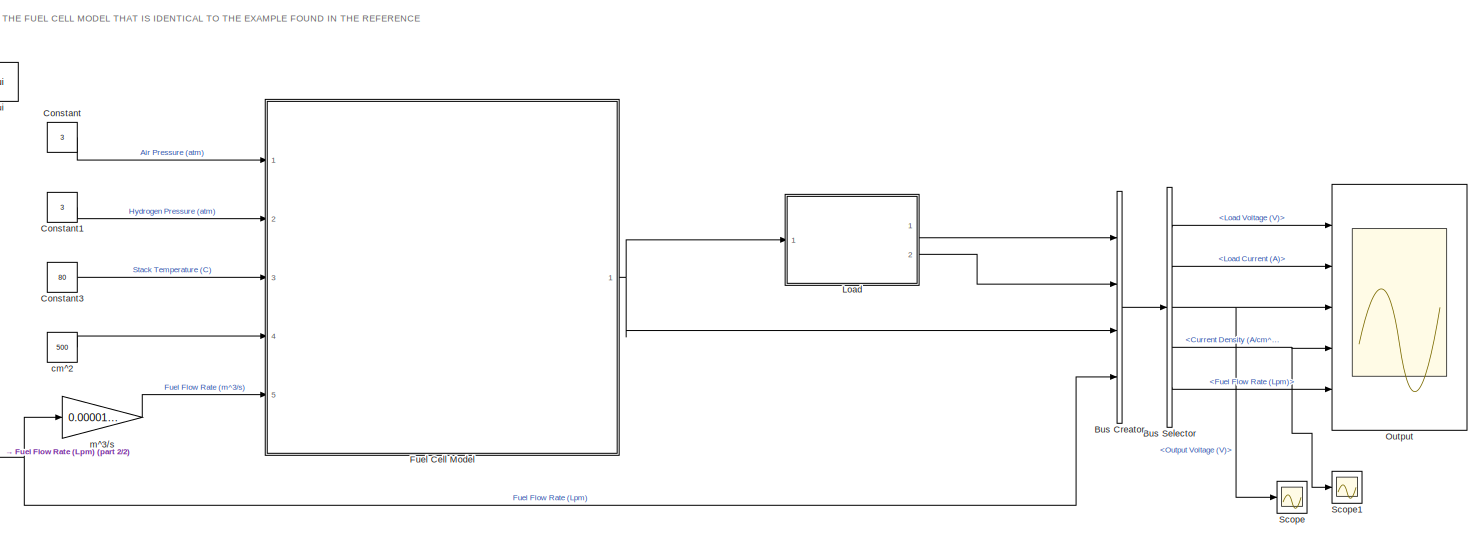
[diagram: root canvas - part 1/2, most of the canvas]
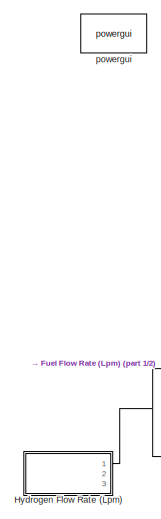
[diagram: root canvas - part 2/2, left side, full height]
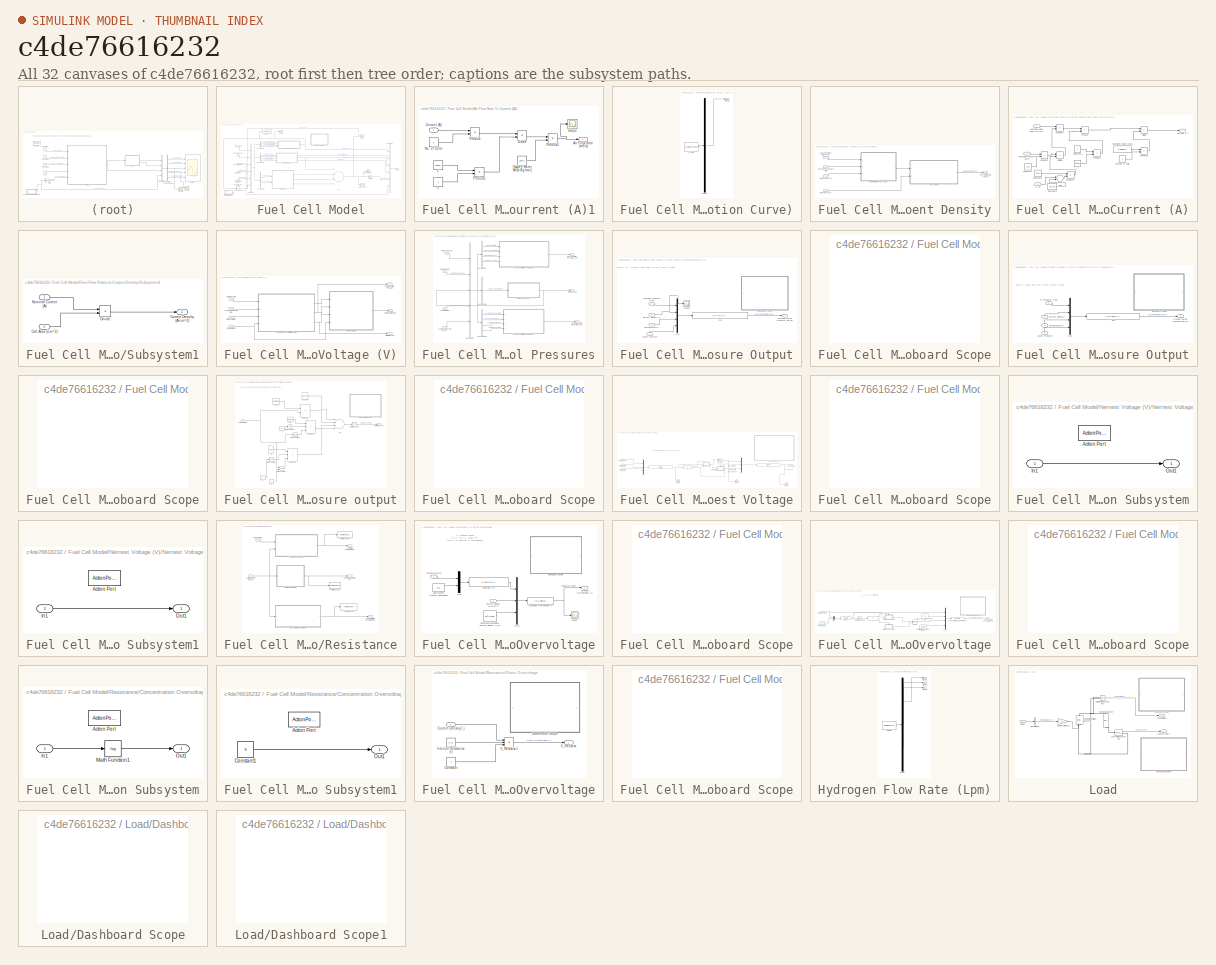
[diagram: thumbnail index - all 32 canvases of the model, root first then tree order]
MODEL slx_c4de76616232
KIND model
CONFIG AbsTol = auto
CONFIG EnableMultiTasking = on
CONFIG FixedStep = 0.01
CONFIG MaxStep = auto
CONFIG MinStep = auto
CONFIG RelTol = 1e-3
CONFIG SampleTimeConstraint = Unconstrained
CONFIG Solver = ode3
CONFIG SolverName = ode3
CONFIG StartTime = 0.0
CONFIG StopTime = 50
BLOCK [BusCreator] Bus Creator
  DisplayOption = bar
  InheritFromInputs = on
  Inputs = 4
  Ports = [4, 1]
BLOCK [BusSelector] Bus Selector
  OutputAsBus = off
  OutputSignals = Load Voltage (V),Load Current (A),signal3.Output Voltage (V),signal3.Current Density (A/cm^2),Fuel Flow Rate (Lpm)
  Ports = [1, 5]
BLOCK [Constant] Constant
  Value = 3
BLOCK [Constant] Constant1
  Value = 3
BLOCK [Constant] Constant3
  Value = 80
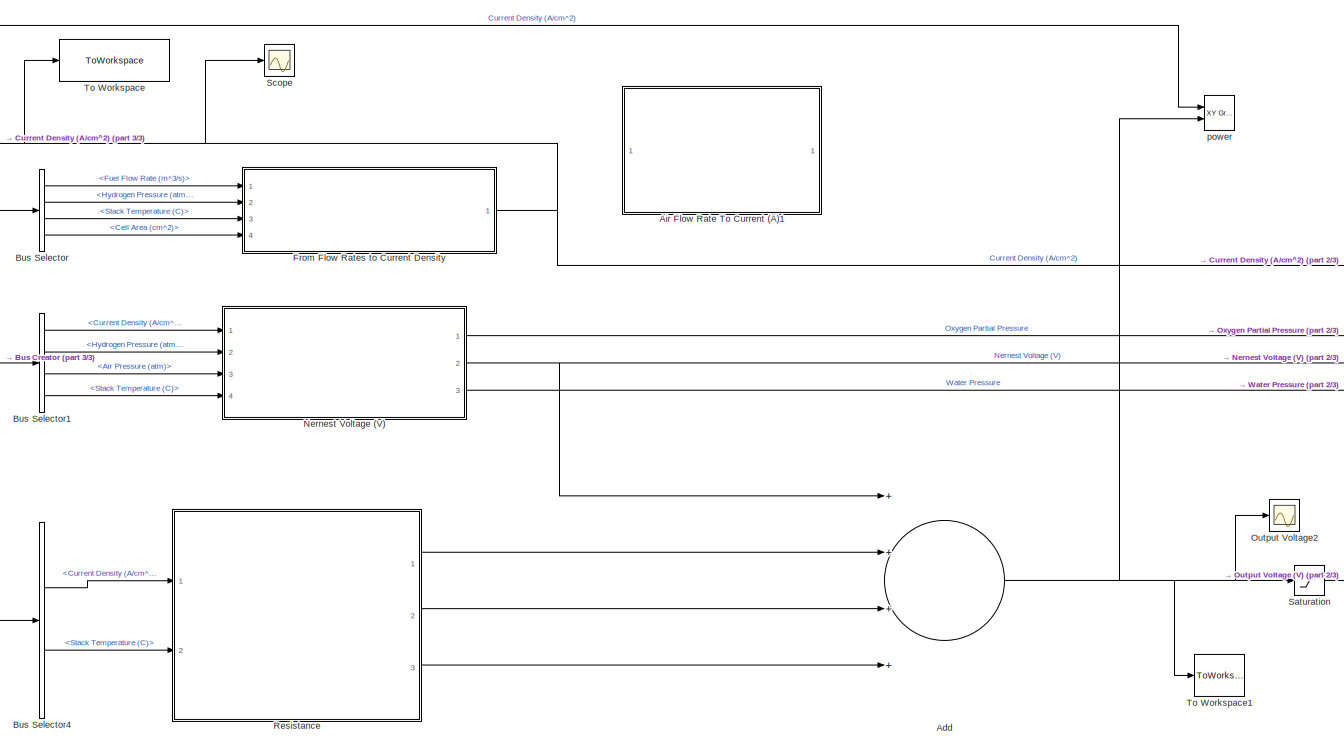
[diagram: Fuel Cell Model - part 1/3, center side, full height]
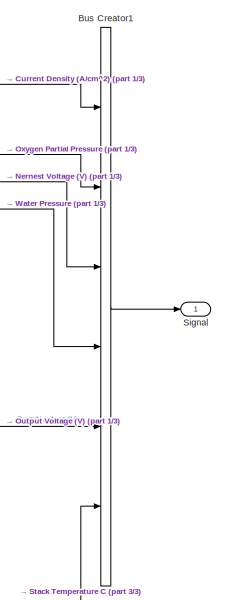
[diagram: Fuel Cell Model - part 2/3, middle right region]
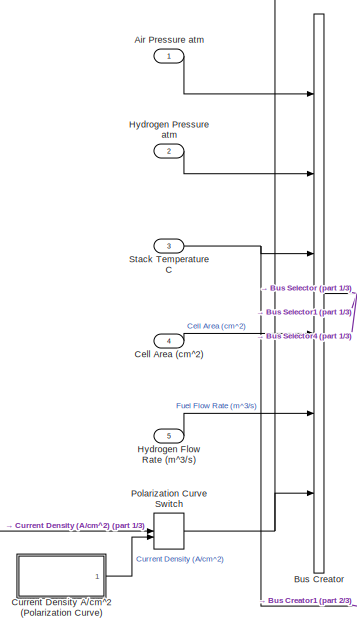
[diagram: Fuel Cell Model - part 3/3, left side, full height]
BLOCK [SubSystem] Fuel Cell Model
  Ports = [5, 1]
  RequestExecContextInheritance = off
  Variant = off
BLOCK [Sum] Fuel Cell Model/Add
  InputSameDT = off
  Inputs = ++++
  OutDataTypeStr = Inherit: Inherit via internal rule
  Ports = [4, 1]
  SaturateOnIntegerOverflow = off
BLOCK [SubSystem] Fuel Cell Model/Air Flow Rate To Current (A)1
  Ports = [1, 1]
  RequestExecContextInheritance = off
  Variant = off
BLOCK [Outport] Fuel Cell Model/Air Flow Rate To Current (A)1/Air Flow Rate (m^3//s)
  IconDisplay = Port number
BLOCK [Inport] Fuel Cell Model/Air Flow Rate To Current (A)1/Current (A)
  IconDisplay = Port number
BLOCK [Product] Fuel Cell Model/Air Flow Rate To Current (A)1/Divide
  InputSameDT = off
  Inputs = */
  OutDataTypeStr = Inherit: Inherit via internal rule
  Ports = [2, 1]
  RndMeth = Floor
  SaturateOnIntegerOverflow = off
BLOCK [Constant] Fuel Cell Model/Air Flow Rate To Current (A)1/F
  Value = 96487
BLOCK [Constant] Fuel Cell Model/Air Flow Rate To Current (A)1/No. of Cells
BLOCK [Constant] Fuel Cell Model/Air Flow Rate To Current (A)1/Oxygen Molar Mass (Kg//mol)
  Value = 32e-3
BLOCK [Product] Fuel Cell Model/Air Flow Rate To Current (A)1/Product
  InputSameDT = off
  OutDataTypeStr = Inherit: Inherit via internal rule
  Ports = [2, 1]
  RndMeth = Floor
  SaturateOnIntegerOverflow = off
BLOCK [Product] Fuel Cell Model/Air Flow Rate To Current (A)1/Product1
  InputSameDT = off
  OutDataTypeStr = Inherit: Inherit via internal rule
  Ports = [2, 1]
  RndMeth = Floor
  SaturateOnIntegerOverflow = off
BLOCK [Product] Fuel Cell Model/Air Flow Rate To Current (A)1/Product2
  InputSameDT = off
  OutDataTypeStr = Inherit: Inherit via internal rule
  Ports = [2, 1]
  RndMeth = Floor
  SaturateOnIntegerOverflow = off
BLOCK [Scope] Fuel Cell Model/Air Flow Rate To Current (A)1/Scope
  NumInputPorts = 1
  Ports = [1]
  ScopeSpecificationString = C++SS(StrPVP('Location','[188, 365, 512, 604]'),StrPVP('Open','off'),MxPVP('AxesTitles',53,'struct(''axes1'',''%<SignalLabel>'')'),StrPVP('SaveName','ScopeData7'),StrPVP('LimitDataPoints','on'),StrPVP('DataFormat','Array'),StrPVP('Decimation','1'),StrPVP('BlockParamSampleInput','off'))
BLOCK [Constant] Fuel Cell Model/Air Flow Rate To Current (A)1/c
  Value = 4
BLOCK [Inport] Fuel Cell Model/Air Pressure atm
  IconDisplay = Port number
BLOCK [BusCreator] Fuel Cell Model/Bus Creator
  DisplayOption = bar
  InheritFromInputs = on
  Inputs = 6
  Ports = [6, 1]
BLOCK [BusCreator] Fuel Cell Model/Bus Creator1
  DisplayOption = bar
  InheritFromInputs = on
  Inputs = 6
  Ports = [6, 1]
BLOCK [BusSelector] Fuel Cell Model/Bus Selector
  OutputAsBus = off
  OutputSignals = Fuel Flow Rate (m^3/s),Hydrogen Pressure (atm),Stack Temperature (C),Cell Area (cm^2)
  Ports = [1, 4]
BLOCK [BusSelector] Fuel Cell Model/Bus Selector1
  OutputAsBus = off
  OutputSignals = Current Density (A/cm^2),Hydrogen Pressure (atm),Air Pressure (atm),Stack Temperature (C)
  Ports = [1, 4]
BLOCK [BusSelector] Fuel Cell Model/Bus Selector4
  OutputAsBus = off
  OutputSignals = Current Density (A/cm^2),Stack Temperature (C)
  Ports = [1, 2]
BLOCK [Inport] Fuel Cell Model/Cell Area (cm^2)
  IconDisplay = Port number
  Port = 4
BLOCK [SubSystem] Fuel Cell Model/Current Density A//cm^2 (Polarization Curve)
  ClipboardFcn = sigbuilder_block('clipboard');
  CloseFcn = sigbuilder_block('close');
  ContinueFcn = sigbuilder_block('continue');
  CopyFcn = sigbuilder_block('copy');
  DeleteFcn = sigbuilder_block('delete');
  LoadFcn = sigbuilder_block('load');
  MaskHideContents = on
  ModelCloseFcn = sigbuilder_block('modelClose');
  NameChangeFcn = sigbuilder_block('namechange');
  OpenFcn = sigbuilder_block('open',[403.5 117 550.5 359.25 ]);
  PauseFcn = sigbuilder_block('pause');
  Ports = [0, 1]
  PreSaveFcn = sigbuilder_block('preSave');
  RequestExecContextInheritance = off
  StartFcn = sigbuilder_block('start');
  StopFcn = sigbuilder_block('stop');
  Tag = STV Subsys
  Variant = off
BLOCK [Demux] Fuel Cell Model/Current Density A//cm^2 (Polarization Curve)/Demux
  Outputs = 1
  Ports = [1, 1]
  Tag = STV Demux
BLOCK [FromWorkspace] Fuel Cell Model/Current Density A//cm^2 (Polarization Curve)/FromWs
  SampleTime = 0
  Tag = STV FromWs
  VariableName = tuvar
  ZeroCross = on
BLOCK [Outport] Fuel Cell Model/Current Density A//cm^2 (Polarization Curve)/Signal 1
  IconDisplay = Port number
  Tag = STV Outport
BLOCK [SubSystem] Fuel Cell Model/From Flow Rates to Current Density
  Ports = [4, 1]
  RequestExecContextInheritance = off
  Variant = off
BLOCK [Inport] Fuel Cell Model/From Flow Rates to Current Density/Cell Area (cm^2)
  IconDisplay = Port number
  Port = 4
BLOCK [Outport] Fuel Cell Model/From Flow Rates to Current Density/Current Density (A//cm^2)
  IconDisplay = Port number
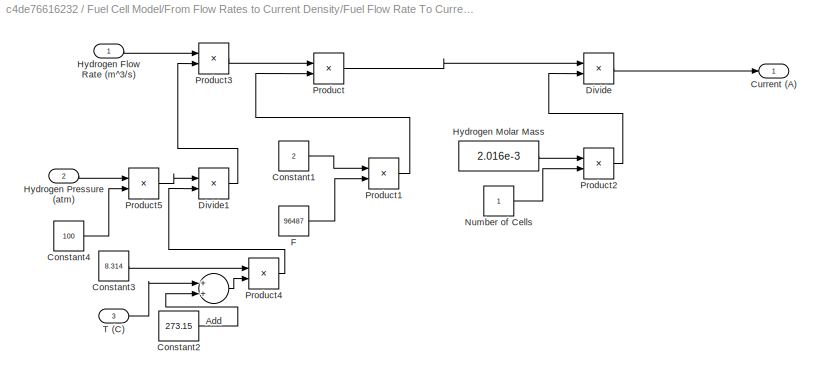
BLOCK [SubSystem] Fuel Cell Model/From Flow Rates to Current Density/Fuel Flow Rate To Current (A)
  Ports = [3, 1]
  RequestExecContextInheritance = off
  Variant = off
BLOCK [Sum] Fuel Cell Model/From Flow Rates to Current Density/Fuel Flow Rate To Current (A)/Add
  InputSameDT = off
  OutDataTypeStr = Inherit: Inherit via internal rule
  Ports = [2, 1]
  SaturateOnIntegerOverflow = off
BLOCK [Constant] Fuel Cell Model/From Flow Rates to Current Density/Fuel Flow Rate To Current (A)/Constant1
  Value = 2
BLOCK [Constant] Fuel Cell Model/From Flow Rates to Current Density/Fuel Flow Rate To Current (A)/Constant2
  Value = 273.15
BLOCK [Constant] Fuel Cell Model/From Flow Rates to Current Density/Fuel Flow Rate To Current (A)/Constant3
  Value = 8.314
BLOCK [Constant] Fuel Cell Model/From Flow Rates to Current Density/Fuel Flow Rate To Current (A)/Constant4
  Value = 100
BLOCK [Outport] Fuel Cell Model/From Flow Rates to Current Density/Fuel Flow Rate To Current (A)/Current (A)
  IconDisplay = Port number
BLOCK [Product] Fuel Cell Model/From Flow Rates to Current Density/Fuel Flow Rate To Current (A)/Divide
  InputSameDT = off
  Inputs = */
  OutDataTypeStr = Inherit: Inherit via internal rule
  Ports = [2, 1]
  RndMeth = Floor
  SaturateOnIntegerOverflow = off
BLOCK [Product] Fuel Cell Model/From Flow Rates to Current Density/Fuel Flow Rate To Current (A)/Divide1
  InputSameDT = off
  Inputs = */
  OutDataTypeStr = Inherit: Inherit via internal rule
  Ports = [2, 1]
  RndMeth = Floor
  SaturateOnIntegerOverflow = off
BLOCK [Constant] Fuel Cell Model/From Flow Rates to Current Density/Fuel Flow Rate To Current (A)/F
  Value = 96487
BLOCK [Inport] Fuel Cell Model/From Flow Rates to Current Density/Fuel Flow Rate To Current (A)/Hydrogen Flow Rate (m^3//s)
  IconDisplay = Port number
BLOCK [Constant] Fuel Cell Model/From Flow Rates to Current Density/Fuel Flow Rate To Current (A)/Hydrogen Molar Mass
  Value = 2.016e-3
BLOCK [Inport] Fuel Cell Model/From Flow Rates to Current Density/Fuel Flow Rate To Current (A)/Hydrogen Pressure (atm)
  IconDisplay = Port number
  Port = 2
BLOCK [Constant] Fuel Cell Model/From Flow Rates to Current Density/Fuel Flow Rate To Current (A)/Number of Cells
BLOCK [Product] Fuel Cell Model/From Flow Rates to Current Density/Fuel Flow Rate To Current (A)/Product
  InputSameDT = off
  OutDataTypeStr = Inherit: Inherit via internal rule
  Ports = [2, 1]
  RndMeth = Floor
  SaturateOnIntegerOverflow = off
BLOCK [Product] Fuel Cell Model/From Flow Rates to Current Density/Fuel Flow Rate To Current (A)/Product1
  InputSameDT = off
  OutDataTypeStr = Inherit: Inherit via internal rule
  Ports = [2, 1]
  RndMeth = Floor
  SaturateOnIntegerOverflow = off
BLOCK [Product] Fuel Cell Model/From Flow Rates to Current Density/Fuel Flow Rate To Current (A)/Product2
  InputSameDT = off
  OutDataTypeStr = Inherit: Inherit via internal rule
  Ports = [2, 1]
  RndMeth = Floor
  SaturateOnIntegerOverflow = off
BLOCK [Product] Fuel Cell Model/From Flow Rates to Current Density/Fuel Flow Rate To Current (A)/Product3
  InputSameDT = off
  OutDataTypeStr = Inherit: Inherit via internal rule
  Ports = [2, 1]
  RndMeth = Floor
  SaturateOnIntegerOverflow = off
BLOCK [Product] Fuel Cell Model/From Flow Rates to Current Density/Fuel Flow Rate To Current (A)/Product4
  InputSameDT = off
  OutDataTypeStr = Inherit: Inherit via internal rule
  Ports = [2, 1]
  RndMeth = Floor
  SaturateOnIntegerOverflow = off
BLOCK [Product] Fuel Cell Model/From Flow Rates to Current Density/Fuel Flow Rate To Current (A)/Product5
  InputSameDT = off
  OutDataTypeStr = Inherit: Inherit via internal rule
  Ports = [2, 1]
  RndMeth = Floor
  SaturateOnIntegerOverflow = off
BLOCK [Inport] Fuel Cell Model/From Flow Rates to Current Density/Fuel Flow Rate To Current (A)/T (C)
  IconDisplay = Port number
  Port = 3
BLOCK [Inport] Fuel Cell Model/From Flow Rates to Current Density/Hydrogen Flow Rate (m^3//s)
  IconDisplay = Port number
BLOCK [Inport] Fuel Cell Model/From Flow Rates to Current Density/Hydrogen Pressure (atm)
  IconDisplay = Port number
  Port = 2
BLOCK [SubSystem] Fuel Cell Model/From Flow Rates to Current Density/Subsystem1
  Ports = [2, 1]
  RequestExecContextInheritance = off
  Variant = off
BLOCK [Inport] Fuel Cell Model/From Flow Rates to Current Density/Subsystem1/Cell Area (cm^2)
  IconDisplay = Port number
  Port = 2
BLOCK [Outport] Fuel Cell Model/From Flow Rates to Current Density/Subsystem1/Current Density (A//cm^2)
  IconDisplay = Port number
BLOCK [Product] Fuel Cell Model/From Flow Rates to Current Density/Subsystem1/Divide
  InputSameDT = off
  Inputs = */
  OutDataTypeStr = Inherit: Inherit via internal rule
  Ports = [2, 1]
  RndMeth = Floor
  SaturateOnIntegerOverflow = off
BLOCK [Inport] Fuel Cell Model/From Flow Rates to Current Density/Subsystem1/Nominal Current (A)
  IconDisplay = Port number
BLOCK [Inport] Fuel Cell Model/From Flow Rates to Current Density/Temperature (C)
  IconDisplay = Port number
  Port = 3
BLOCK [Inport] Fuel Cell Model/Hydrogen Flow Rate (m^3//s)
  IconDisplay = Port number
  Port = 5
BLOCK [Inport] Fuel Cell Model/Hydrogen Pressure atm
  IconDisplay = Port number
  Port = 2
BLOCK [SubSystem] Fuel Cell Model/Nernest Voltage (V)
  Ports = [4, 3]
  RequestExecContextInheritance = off
  Variant = off
BLOCK [Inport] Fuel Cell Model/Nernest Voltage (V)/Air Pressure (atm)
  IconDisplay = Port number
  Port = 3
BLOCK [Inport] Fuel Cell Model/Nernest Voltage (V)/Current Density (i)
  IconDisplay = Port number
BLOCK [SubSystem] Fuel Cell Model/Nernest Voltage (V)/From Pressure To Partial Pressures
  Ports = [4, 3]
  RequestExecContextInheritance = off
  Variant = off
BLOCK [Inport] Fuel Cell Model/Nernest Voltage (V)/From Pressure To Partial Pressures/Air Pressure (P_air)
  IconDisplay = Port number
  Port = 3
BLOCK [BusCreator] Fuel Cell Model/Nernest Voltage (V)/From Pressure To Partial Pressures/Bus Creator
  DisplayOption = bar
  InheritFromInputs = on
  Inputs = 5
  Ports = [5, 1]
BLOCK [BusSelector] Fuel Cell Model/Nernest Voltage (V)/From Pressure To Partial Pressures/Bus Selector
  OutputAsBus = off
  OutputSignals = Air Pressure (atm),Stack Temperature (C),Current Density (A/cm^2),Water Pressure(atm)
  Ports = [1, 4]
BLOCK [BusSelector] Fuel Cell Model/Nernest Voltage (V)/From Pressure To Partial Pressures/Bus Selector1
  OutputAsBus = off
  OutputSignals = Stack Temperature (C)
  Ports = [1, 1]
BLOCK [BusSelector] Fuel Cell Model/Nernest Voltage (V)/From Pressure To Partial Pressures/Bus Selector2
  OutputAsBus = off
  OutputSignals = Hydrogen Pressure (atm),Stack Temperature (C),Current Density (A/cm^2),Water Pressure(atm)
  Ports = [1, 4]
BLOCK [Inport] Fuel Cell Model/Nernest Voltage (V)/From Pressure To Partial Pressures/Current Density (i )
  IconDisplay = Port number
BLOCK [Outport] Fuel Cell Model/Nernest Voltage (V)/From Pressure To Partial Pressures/Hydrogen Partial Pressure (pp_H2)
  IconDisplay = Port number
BLOCK [SubSystem] Fuel Cell Model/Nernest Voltage (V)/From Pressure To Partial Pressures/Hydrogen Partial Pressure Output
  Ports = [4, 1]
  RequestExecContextInheritance = off
  Variant = off
BLOCK [Inport] Fuel Cell Model/Nernest Voltage (V)/From Pressure To Partial Pressures/Hydrogen Partial Pressure Output/Current Density (i )
  IconDisplay = Port number
  Port = 3
BLOCK [SubSystem] Fuel Cell Model/Nernest Voltage (V)/From Pressure To Partial Pressures/Hydrogen Partial Pressure Output/Dashboard Scope
  DialogController = hmiCreateDDGDialog
  IsWebBlock = on
  MaskHideContents = on
  Ports = []
  RequestExecContextInheritance = off
  Variant = off
BLOCK [Fcn] Fuel Cell Model/Nernest Voltage (V)/From Pressure To Partial Pressures/Hydrogen Partial Pressure Output/Fcn
  Expr = 0.5*((u(1))/(exp(1.653*u(2)/((u(3)+273.15)^1.334)))-u(4))
BLOCK [Outport] Fuel Cell Model/Nernest Voltage (V)/From Pressure To Partial Pressures/Hydrogen Partial Pressure Output/Hydrogen Partial Pressure (pp_H2)
  IconDisplay = Port number
BLOCK [Inport] Fuel Cell Model/Nernest Voltage (V)/From Pressure To Partial Pressures/Hydrogen Partial Pressure Output/Hydrogen Pressure (P_H2)
  IconDisplay = Port number
BLOCK [Mux] Fuel Cell Model/Nernest Voltage (V)/From Pressure To Partial Pressures/Hydrogen Partial Pressure Output/Mux
  DisplayOption = bar
  Ports = [4, 1]
BLOCK [Scope] Fuel Cell Model/Nernest Voltage (V)/From Pressure To Partial Pressures/Hydrogen Partial Pressure Output/Scope
  NumInputPorts = 1
  Ports = [1]
  ScopeSpecificationString = C++SS(StrPVP('Location','[188, 365, 512, 604]'),StrPVP('Open','off'),MxPVP('AxesTitles',53,'struct(''axes1'',''%<SignalLabel>'')'),MxPVP('ScopeGraphics',56,'struct(''FigureColor'',''[0.5 0.5 0.5]'',''AxesColor'',''[0 0 0]'',''AxesTickColor'',''[1 1 1]'',''LineColors'',''[1 1 0;1 0 1;0 1 1;1 0 0;0 1 0;0 0 1]'',''LineStyles'',''-|-|-|-|-|-'',''LineWidths'',''[0.5 0.5 0.5 0.5 0.5 0.5]'',''MarkerStyle...<+196ch>
BLOCK [Inport] Fuel Cell Model/Nernest Voltage (V)/From Pressure To Partial Pressures/Hydrogen Partial Pressure Output/Temperature//C
  IconDisplay = Port number
  Port = 2
BLOCK [Inport] Fuel Cell Model/Nernest Voltage (V)/From Pressure To Partial Pressures/Hydrogen Partial Pressure Output/Water Pressure
  IconDisplay = Port number
  Port = 4
BLOCK [Inport] Fuel Cell Model/Nernest Voltage (V)/From Pressure To Partial Pressures/Hydrogen Pressure (P_H2)
  IconDisplay = Port number
  Port = 2
BLOCK [SubSystem] Fuel Cell Model/Nernest Voltage (V)/From Pressure To Partial Pressures/Oxygen Partial Pressure Output
  Ports = [4, 1]
  RequestExecContextInheritance = off
  Variant = off
BLOCK [Inport] Fuel Cell Model/Nernest Voltage (V)/From Pressure To Partial Pressures/Oxygen Partial Pressure Output/Air Pressure (P_air)
  IconDisplay = Port number
BLOCK [Inport] Fuel Cell Model/Nernest Voltage (V)/From Pressure To Partial Pressures/Oxygen Partial Pressure Output/Current Density//i
  IconDisplay = Port number
  Port = 3
BLOCK [SubSystem] Fuel Cell Model/Nernest Voltage (V)/From Pressure To Partial Pressures/Oxygen Partial Pressure Output/Dashboard Scope
  DialogController = hmiCreateDDGDialog
  IsWebBlock = on
  MaskHideContents = on
  Ports = []
  RequestExecContextInheritance = off
  Variant = off
BLOCK [Fcn] Fuel Cell Model/Nernest Voltage (V)/From Pressure To Partial Pressures/Oxygen Partial Pressure Output/Fcn
  Expr = (u(1)/exp(4.192 *u(2)/((u(3)+273.15)^1.334)))-u(4)
BLOCK [Mux] Fuel Cell Model/Nernest Voltage (V)/From Pressure To Partial Pressures/Oxygen Partial Pressure Output/Mux
  DisplayOption = bar
  Ports = [4, 1]
BLOCK [Outport] Fuel Cell Model/Nernest Voltage (V)/From Pressure To Partial Pressures/Oxygen Partial Pressure Output/Oxygen Partial Pressure pp_O2
  IconDisplay = Port number
BLOCK [Inport] Fuel Cell Model/Nernest Voltage (V)/From Pressure To Partial Pressures/Oxygen Partial Pressure Output/Temperature//C
  IconDisplay = Port number
  Port = 2
BLOCK [Inport] Fuel Cell Model/Nernest Voltage (V)/From Pressure To Partial Pressures/Oxygen Partial Pressure Output/Water Pressure
  IconDisplay = Port number
  Port = 4
BLOCK [Outport] Fuel Cell Model/Nernest Voltage (V)/From Pressure To Partial Pressures/Oxygen Partial Pressure pp_O2
  IconDisplay = Port number
  Port = 2
BLOCK [Inport] Fuel Cell Model/Nernest Voltage (V)/From Pressure To Partial Pressures/Temperature//C
  IconDisplay = Port number
  Port = 4
BLOCK [Outport] Fuel Cell Model/Nernest Voltage (V)/From Pressure To Partial Pressures/Water Pressure
  IconDisplay = Port number
  Port = 3
BLOCK [SubSystem] Fuel Cell Model/Nernest Voltage (V)/From Pressure To Partial Pressures/Water Pressure output
  Ports = [1, 1]
  RequestExecContextInheritance = off
  Variant = off
BLOCK [Constant] Fuel Cell Model/Nernest Voltage (V)/From Pressure To Partial Pressures/Water Pressure output/-1
  Value = -7
BLOCK [Constant] Fuel Cell Model/Nernest Voltage (V)/From Pressure To Partial Pressures/Water Pressure output/-2
  Value = 3
BLOCK [Constant] Fuel Cell Model/Nernest Voltage (V)/From Pressure To Partial Pressures/Water Pressure output/-5
  Value = -5
BLOCK [Constant] Fuel Cell Model/Nernest Voltage (V)/From Pressure To Partial Pressures/Water Pressure output/0.02953
  Value = 0.02953
BLOCK [Constant] Fuel Cell Model/Nernest Voltage (V)/From Pressure To Partial Pressures/Water Pressure output/0.1
  Value = 9.1837
BLOCK [Constant] Fuel Cell Model/Nernest Voltage (V)/From Pressure To Partial Pressures/Water Pressure output/0.2
  Value = 1.4454
BLOCK [Sum] Fuel Cell Model/Nernest Voltage (V)/From Pressure To Partial Pressures/Water Pressure output/Add
  InputSameDT = off
  Inputs = +++-
  OutDataTypeStr = Inherit: Inherit via internal rule
  Ports = [4, 1]
  SaturateOnIntegerOverflow = off
BLOCK [Constant] Fuel Cell Model/Nernest Voltage (V)/From Pressure To Partial Pressures/Water Pressure output/Constant4
  Value = -2.1794
BLOCK [SubSystem] Fuel Cell Model/Nernest Voltage (V)/From Pressure To Partial Pressures/Water Pressure output/Dashboard Scope
  DialogController = hmiCreateDDGDialog
  IsWebBlock = on
  MaskHideContents = on
  Ports = []
  RequestExecContextInheritance = off
  Variant = off
BLOCK [Math] Fuel Cell Model/Nernest Voltage (V)/From Pressure To Partial Pressures/Water Pressure output/Math Function4
  Operator = 10^u
  Ports = [1, 1]
BLOCK [Math] Fuel Cell Model/Nernest Voltage (V)/From Pressure To Partial Pressures/Water Pressure output/Math Function5
  Operator = square
  Ports = [1, 1]
BLOCK [Math] Fuel Cell Model/Nernest Voltage (V)/From Pressure To Partial Pressures/Water Pressure output/Math Function6
  Operator = 10^u
  Ports = [1, 1]
BLOCK [Math] Fuel Cell Model/Nernest Voltage (V)/From Pressure To Partial Pressures/Water Pressure output/Math Function7
  Operator = pow
  Ports = [2, 1]
BLOCK [Product] Fuel Cell Model/Nernest Voltage (V)/From Pressure To Partial Pressures/Water Pressure output/Product1
  InputSameDT = off
  Inputs = 3
  OutDataTypeStr = Inherit: Inherit via internal rule
  Ports = [3, 1]
  RndMeth = Floor
  SaturateOnIntegerOverflow = off
BLOCK [Product] Fuel Cell Model/Nernest Voltage (V)/From Pressure To Partial Pressures/Water Pressure output/Product2
  InputSameDT = off
  OutDataTypeStr = Inherit: Inherit via internal rule
  Ports = [2, 1]
  RndMeth = Floor
  SaturateOnIntegerOverflow = off
BLOCK [Product] Fuel Cell Model/Nernest Voltage (V)/From Pressure To Partial Pressures/Water Pressure output/Product3
  InputSameDT = off
  Inputs = 3
  OutDataTypeStr = Inherit: Inherit via internal rule
  Ports = [3, 1]
  RndMeth = Floor
  SaturateOnIntegerOverflow = off
BLOCK [Inport] Fuel Cell Model/Nernest Voltage (V)/From Pressure To Partial Pressures/Water Pressure output/Temperature//C
  IconDisplay = Port number
BLOCK [Outport] Fuel Cell Model/Nernest Voltage (V)/From Pressure To Partial Pressures/Water Pressure output/Water Pressure
  IconDisplay = Port number
BLOCK [Math] Fuel Cell Model/Nernest Voltage (V)/From Pressure To Partial Pressures/Water Pressure output/water  pressure 
  Operator = 10^u
  Ports = [1, 1]
BLOCK [Inport] Fuel Cell Model/Nernest Voltage (V)/Hydrogen Pressure (atm)
  IconDisplay = Port number
  Port = 2
BLOCK [SubSystem] Fuel Cell Model/Nernest Voltage (V)/Nernest Voltage
  Ports = [4, 1]
  RequestExecContextInheritance = off
  Variant = off
BLOCK [Outport] Fuel Cell Model/Nernest Voltage (V)/Nernest Voltage (V)
  IconDisplay = Port number
  Port = 2
BLOCK [Constant] Fuel Cell Model/Nernest Voltage (V)/Nernest Voltage/Constant1
BLOCK [SubSystem] Fuel Cell Model/Nernest Voltage (V)/Nernest Voltage/Dashboard Scope
  DialogController = hmiCreateDDGDialog
  IsWebBlock = on
  MaskHideContents = on
  Ports = []
  RequestExecContextInheritance = off
  Variant = off
BLOCK [Fcn] Fuel Cell Model/Nernest Voltage (V)/Nernest Voltage/Fcn
  Expr = u(1)/(u(2)*(u(3)^0.5))
BLOCK [Fcn] Fuel Cell Model/Nernest Voltage (V)/Nernest Voltage/Fcn1
  Expr = (-u(3)/(2*96485))-((8.314*(u(2)+273.15))*log(u(1)))/(2*96485)
BLOCK [Constant] Fuel Cell Model/Nernest Voltage (V)/Nernest Voltage/Gibbs Value (J//mol)
  Value = -228170
BLOCK [Inport] Fuel Cell Model/Nernest Voltage (V)/Nernest Voltage/Hydrogen Partial Pressure
  IconDisplay = Port number
BLOCK [If] Fuel Cell Model/Nernest Voltage (V)/Nernest Voltage/If
  Ports = [1, 2]
BLOCK [SubSystem] Fuel Cell Model/Nernest Voltage (V)/Nernest Voltage/If Action Subsystem
  Ports = [1, 1, 0, 0, 0, 0, 0, 1]
  RequestExecContextInheritance = off
  TreatAsAtomicUnit = on
  Variant = off
BLOCK [ActionPort] Fuel Cell Model/Nernest Voltage (V)/Nernest Voltage/If Action Subsystem/Action Port
  ActionType = then
BLOCK [Inport] Fuel Cell Model/Nernest Voltage (V)/Nernest Voltage/If Action Subsystem/In1
  IconDisplay = Port number
BLOCK [Outport] Fuel Cell Model/Nernest Voltage (V)/Nernest Voltage/If Action Subsystem/Out1
  IconDisplay = Port number
BLOCK [SubSystem] Fuel Cell Model/Nernest Voltage (V)/Nernest Voltage/If Action Subsystem1
  Ports = [1, 1, 0, 0, 0, 0, 0, 1]
  RequestExecContextInheritance = off
  TreatAsAtomicUnit = on
  Variant = off
BLOCK [ActionPort] Fuel Cell Model/Nernest Voltage (V)/Nernest Voltage/If Action Subsystem1/Action Port
  ActionType = else
BLOCK [Inport] Fuel Cell Model/Nernest Voltage (V)/Nernest Voltage/If Action Subsystem1/In1
  IconDisplay = Port number
BLOCK [Outport] Fuel Cell Model/Nernest Voltage (V)/Nernest Voltage/If Action Subsystem1/Out1
  IconDisplay = Port number
BLOCK [Merge] Fuel Cell Model/Nernest Voltage (V)/Nernest Voltage/Merge
  Ports = [2, 1]
BLOCK [Mux] Fuel Cell Model/Nernest Voltage (V)/Nernest Voltage/Mux
  DisplayOption = bar
  Inputs = 3
  Ports = [3, 1]
BLOCK [Mux] Fuel Cell Model/Nernest Voltage (V)/Nernest Voltage/Mux1
  DisplayOption = bar
  Inputs = 3
  Ports = [3, 1]
BLOCK [Outport] Fuel Cell Model/Nernest Voltage (V)/Nernest Voltage/Nernest Voltage1
  IconDisplay = Port number
BLOCK [Inport] Fuel Cell Model/Nernest Voltage (V)/Nernest Voltage/Oxygen Partial Pressure
  IconDisplay = Port number
  Port = 2
BLOCK [Scope] Fuel Cell Model/Nernest Voltage (V)/Nernest Voltage/Scope
  NumInputPorts = 1
  Ports = [1]
  ScopeSpecificationString = C++SS(StrPVP('Location','[1, 49, 1367, 727]'),StrPVP('Open','off'),MxPVP('AxesTitles',53,'struct(''axes1'',''%<SignalLabel>'')'),MxPVP('ScopeGraphics',56,'struct(''FigureColor'',''[0.5 0.5 0.5]'',''AxesColor'',''[0 0 0]'',''AxesTickColor'',''[1 1 1]'',''LineColors'',''[1 1 0;1 0 1;0 1 1;1 0 0;0 1 0;0 0 1]'',''LineStyles'',''-|-|-|-|-|-'',''LineWidths'',''[0.5 0.5 0.5 0.5 0.5 0.5]'',''MarkerStyles'...<+245ch>
BLOCK [Scope] Fuel Cell Model/Nernest Voltage (V)/Nernest Voltage/Scope1
  NumInputPorts = 1
  Ports = [1]
  ScopeSpecificationString = C++SS(StrPVP('Location','[188, 365, 512, 604]'),StrPVP('Open','off'),MxPVP('AxesTitles',53,'struct(''axes1'',''%<SignalLabel>'')'),MxPVP('ScopeGraphics',56,'struct(''FigureColor'',''[0.5 0.5 0.5]'',''AxesColor'',''[0 0 0]'',''AxesTickColor'',''[1 1 1]'',''LineColors'',''[1 1 0;1 0 1;0 1 1;1 0 0;0 1 0;0 0 1]'',''LineStyles'',''-|-|-|-|-|-'',''LineWidths'',''[0.5 0.5 0.5 0.5 0.5 0.5]'',''MarkerStyle...<+247ch>
BLOCK [Scope] Fuel Cell Model/Nernest Voltage (V)/Nernest Voltage/Scope2
  NumInputPorts = 1
  Ports = [1]
  ScopeSpecificationString = C++SS(StrPVP('Location','[188, 365, 512, 604]'),StrPVP('Open','off'),MxPVP('AxesTitles',53,'struct(''axes1'',''%<SignalLabel>'')'),MxPVP('ScopeGraphics',56,'struct(''FigureColor'',''[0.5 0.5 0.5]'',''AxesColor'',''[0 0 0]'',''AxesTickColor'',''[1 1 1]'',''LineColors'',''[1 1 0;1 0 1;0 1 1;1 0 0;0 1 0;0 0 1]'',''LineStyles'',''-|-|-|-|-|-'',''LineWidths'',''[0.5 0.5 0.5 0.5 0.5 0.5]'',''MarkerStyle...<+247ch>
BLOCK [Inport] Fuel Cell Model/Nernest Voltage (V)/Nernest Voltage/Temperature//C
  IconDisplay = Port number
  Port = 4
BLOCK [Inport] Fuel Cell Model/Nernest Voltage (V)/Nernest Voltage/Water Pressure (P_H2O)
  IconDisplay = Port number
  Port = 3
BLOCK [Outport] Fuel Cell Model/Nernest Voltage (V)/Oxygen Partial Pressure
  IconDisplay = Port number
BLOCK [Inport] Fuel Cell Model/Nernest Voltage (V)/Temperature (C)
  IconDisplay = Port number
  Port = 4
BLOCK [Outport] Fuel Cell Model/Nernest Voltage (V)/Water Pressure
  IconDisplay = Port number
  Port = 3
BLOCK [Scope] Fuel Cell Model/Output Voltage2
  NumInputPorts = 1
  Ports = [1]
  ScopeSpecificationString = C++SS(StrPVP('Location','[6, 60, 1376, 738]'),StrPVP('Open','off'),MxPVP('AxesTitles',53,'struct(''axes1'',''%<SignalLabel>'')'),MxPVP('ScopeGraphics',56,'struct(''FigureColor'',''[0.5 0.5 0.5]'',''AxesColor'',''[0 0 0]'',''AxesTickColor'',''[1 1 1]'',''LineColors'',''[1 1 0;1 0 1;0 1 1;1 0 0;0 1 0;0 0 1]'',''LineStyles'',''-|-|-|-|-|-'',''LineWidths'',''[0.5 0.5 0.5 0.5 0.5 0.5]'',''MarkerStyles'...<+215ch>
BLOCK [ManualSwitch] Fuel Cell Model/Polarization Curve Switch
BLOCK [SubSystem] Fuel Cell Model/Resistance
  Ports = [2, 3]
  RequestExecContextInheritance = off
  Variant = off
BLOCK [SubSystem] Fuel Cell Model/Resistance/Activation Overvoltage
  Ports = [2, 1]
  RequestExecContextInheritance = off
  Variant = off
BLOCK [Outport] Fuel Cell Model/Resistance/Activation Overvoltage (V)
  IconDisplay = Port number
BLOCK [Fcn] Fuel Cell Model/Resistance/Activation Overvoltage/Activation Overvoltage (V)
  Expr = (-u(1)*log(u(2)/u(3)))
BLOCK [Outport] Fuel Cell Model/Resistance/Activation Overvoltage/Activation Overvoltage1 (V)
  IconDisplay = Port number
BLOCK [Constant] Fuel Cell Model/Resistance/Activation Overvoltage/Alpha Charge Transfer Coefficient1
  Value = 0.5
BLOCK [Fcn] Fuel Cell Model/Resistance/Activation Overvoltage/Constant (b)
  Expr = (8.314*(u(1)+273.15))/(2*u(2)*96485)
BLOCK [Inport] Fuel Cell Model/Resistance/Activation Overvoltage/Current Density (i)(A//cm^2)
  IconDisplay = Port number
  Port = 2
BLOCK [SubSystem] Fuel Cell Model/Resistance/Activation Overvoltage/Dashboard Scope
  DialogController = hmiCreateDDGDialog
  IsWebBlock = on
  MaskHideContents = on
  Ports = []
  RequestExecContextInheritance = off
  Variant = off
BLOCK [Mux] Fuel Cell Model/Resistance/Activation Overvoltage/Mux
  DisplayOption = bar
  Inputs = 2
  Ports = [2, 1]
BLOCK [Mux] Fuel Cell Model/Resistance/Activation Overvoltage/Mux1
  DisplayOption = bar
  Inputs = 3
  Ports = [3, 1]
BLOCK [Constant] Fuel Cell Model/Resistance/Activation Overvoltage/Reference Exchange Current Density (I_0)1
  Value = 10^-6.912
BLOCK [Scope] Fuel Cell Model/Resistance/Activation Overvoltage/Scope
  NumInputPorts = 1
  Ports = [1]
  ScopeSpecificationString = C++SS(StrPVP('Location','[151, 365, 512, 604]'),StrPVP('Open','off'),MxPVP('AxesTitles',53,'struct(''axes1'',''%<SignalLabel>'')'),MxPVP('ScopeGraphics',56,'struct(''FigureColor'',''[0.5 0.5 0.5]'',''AxesColor'',''[0 0 0]'',''AxesTickColor'',''[1 1 1]'',''LineColors'',''[1 1 0;1 0 1;0 1 1;1 0 0;0 1 0;0 0 1]'',''LineStyles'',''-|-|-|-|-|-'',''LineWidths'',''[0.5 0.5 0.5 0.5 0.5 0.5]'',''MarkerStyle...<+197ch>
BLOCK [Inport] Fuel Cell Model/Resistance/Activation Overvoltage/Temperature//C1
  IconDisplay = Port number
BLOCK [SubSystem] Fuel Cell Model/Resistance/Concentration Overvoltage
  Ports = [1, 1]
  RequestExecContextInheritance = off
  Variant = off
BLOCK [Outport] Fuel Cell Model/Resistance/Concentration Overvoltage (V)
  IconDisplay = Port number
  Port = 3
BLOCK [Constant] Fuel Cell Model/Resistance/Concentration Overvoltage/Amplification Constant Alpha2
  Value = 0.085
BLOCK [Reference] Fuel Cell Model/Resistance/Concentration Overvoltage/Compare To Zero  REF=simulink/Logic and Bit
Operations/Compare
To Zero
  Ports = [1, 1]
  SourceBlock = simulink/Logic and Bit\nOperations/Compare\nTo Zero
  SourceProductBaseCode = SL
  SourceProductName = Simulink
  SourceType = Compare To Zero
BLOCK [Fcn] Fuel Cell Model/Resistance/Concentration Overvoltage/Concentration Overvoltage (V)
  Expr = (u(1)^u(2))*u(3)*u(4)
BLOCK [Outport] Fuel Cell Model/Resistance/Concentration Overvoltage/Concentration Overvoltage1 (V) 
  IconDisplay = Port number
BLOCK [Inport] Fuel Cell Model/Resistance/Concentration Overvoltage/Current Density (i)1
  IconDisplay = Port number
BLOCK [SubSystem] Fuel Cell Model/Resistance/Concentration Overvoltage/Dashboard Scope
  DialogController = hmiCreateDDGDialog
  IsWebBlock = on
  MaskHideContents = on
  Ports = []
  RequestExecContextInheritance = off
  Variant = off
BLOCK [Fcn] Fuel Cell Model/Resistance/Concentration Overvoltage/Fcn
  Expr = 1-(u(1)/u(2))
BLOCK [If] Fuel Cell Model/Resistance/Concentration Overvoltage/If
  IfExpression = u1 == 0
  Ports = [1, 2]
BLOCK [SubSystem] Fuel Cell Model/Resistance/Concentration Overvoltage/If Action Subsystem
  Ports = [1, 1, 0, 0, 0, 0, 0, 1]
  RequestExecContextInheritance = off
  TreatAsAtomicUnit = on
  Variant = off
BLOCK [ActionPort] Fuel Cell Model/Resistance/Concentration Overvoltage/If Action Subsystem/Action Port
  ActionType = then
BLOCK [Inport] Fuel Cell Model/Resistance/Concentration Overvoltage/If Action Subsystem/In1
  IconDisplay = Port number
BLOCK [Math] Fuel Cell Model/Resistance/Concentration Overvoltage/If Action Subsystem/Math Function1
  Operator = log
  OutputSignalType = real
  Ports = [1, 1]
BLOCK [Outport] Fuel Cell Model/Resistance/Concentration Overvoltage/If Action Subsystem/Out1
  IconDisplay = Port number
BLOCK [SubSystem] Fuel Cell Model/Resistance/Concentration Overvoltage/If Action Subsystem1
  Ports = [0, 1, 0, 0, 0, 0, 0, 1]
  RequestExecContextInheritance = off
  TreatAsAtomicUnit = on
  Variant = off
BLOCK [ActionPort] Fuel Cell Model/Resistance/Concentration Overvoltage/If Action Subsystem1/Action Port
  ActionType = else
BLOCK [Constant] Fuel Cell Model/Resistance/Concentration Overvoltage/If Action Subsystem1/Constant1
  Value = 0
BLOCK [Outport] Fuel Cell Model/Resistance/Concentration Overvoltage/If Action Subsystem1/Out1
  IconDisplay = Port number
BLOCK [Constant] Fuel Cell Model/Resistance/Concentration Overvoltage/Limiting Current (i_L)1
  Value = 1.4
BLOCK [Constant] Fuel Cell Model/Resistance/Concentration Overvoltage/Mass Transport Constant (K)1
  Value = 1.1
BLOCK [Merge] Fuel Cell Model/Resistance/Concentration Overvoltage/Merge
  InitialOutput = 1
  Ports = [2, 1]
BLOCK [Mux] Fuel Cell Model/Resistance/Concentration Overvoltage/Mux
  DisplayOption = bar
  Inputs = 2
  Ports = [2, 1]
BLOCK [Mux] Fuel Cell Model/Resistance/Concentration Overvoltage/Mux1
  DisplayOption = bar
  Ports = [4, 1]
BLOCK [Inport] Fuel Cell Model/Resistance/Current Density (A//cm^2)
  IconDisplay = Port number
BLOCK [SubSystem] Fuel Cell Model/Resistance/Ohmic Overvoltage
  Ports = [1, 1]
  RequestExecContextInheritance = off
  Variant = off
BLOCK [Outport] Fuel Cell Model/Resistance/Ohmic Overvoltage (V)
  IconDisplay = Port number
  Port = 2
BLOCK [Constant] Fuel Cell Model/Resistance/Ohmic Overvoltage/Constant
  Value = -1
BLOCK [Inport] Fuel Cell Model/Resistance/Ohmic Overvoltage/Current Density (i )
  IconDisplay = Port number
BLOCK [SubSystem] Fuel Cell Model/Resistance/Ohmic Overvoltage/Dashboard Scope
  DialogController = hmiCreateDDGDialog
  IsWebBlock = on
  MaskHideContents = on
  Ports = []
  RequestExecContextInheritance = off
  Variant = off
BLOCK [Constant] Fuel Cell Model/Resistance/Ohmic Overvoltage/Internal Resistance (r)
  Value = 0.19
BLOCK [Outport] Fuel Cell Model/Resistance/Ohmic Overvoltage/V_Resistive
  IconDisplay = Port number
BLOCK [Product] Fuel Cell Model/Resistance/Ohmic Overvoltage/V_Resistive1
  InputSameDT = off
  Inputs = 3
  OutDataTypeStr = Inherit: Inherit via internal rule
  Ports = [3, 1]
  RndMeth = Floor
  SaturateOnIntegerOverflow = off
BLOCK [Inport] Fuel Cell Model/Resistance/Temperature (C)
  IconDisplay = Port number
  Port = 2
BLOCK [ToWorkspace] Fuel Cell Model/Resistance/To Workspace1
  MaxDataPoints = inf
  Ports = [1]
  SampleTime = -1
  Save2DSignal = 2-D array (concatenate along first dimension)
  VariableName = V_Concentration
BLOCK [ToWorkspace] Fuel Cell Model/Resistance/To Workspace2
  MaxDataPoints = inf
  Ports = [1]
  SampleTime = -1
  Save2DSignal = 2-D array (concatenate along first dimension)
  VariableName = V_Activation
BLOCK [ToWorkspace] Fuel Cell Model/Resistance/To Workspace3
  MaxDataPoints = inf
  Ports = [1]
  SampleTime = -1
  Save2DSignal = 2-D array (concatenate along first dimension)
  VariableName = V_Ohmic
BLOCK [Saturate] Fuel Cell Model/Saturation
  InputPortMap = u0
  LowerLimit = 0
  Ports = [1, 1]
  UpperLimit = inf
BLOCK [Scope] Fuel Cell Model/Scope
  NumInputPorts = 1
  Ports = [1]
  ScopeSpecificationString = C++SS(StrPVP('Location','[162, 365, 512, 604]'),StrPVP('Open','off'),MxPVP('AxesTitles',53,'struct(''axes1'',''%<SignalLabel>'')'),MxPVP('ScopeGraphics',56,'struct(''FigureColor'',''[0.5 0.5 0.5]'',''AxesColor'',''[0 0 0]'',''AxesTickColor'',''[1 1 1]'',''LineColors'',''[1 1 0;1 0 1;0 1 1;1 0 0;0 1 0;0 0 1]'',''LineStyles'',''-|-|-|-|-|-'',''LineWidths'',''[0.5 0.5 0.5 0.5 0.5 0.5]'',''MarkerStyle...<+246ch>
BLOCK [Outport] Fuel Cell Model/Signal
  IconDisplay = Port number
BLOCK [Inport] Fuel Cell Model/Stack Temperature C
  IconDisplay = Port number
  Port = 3
BLOCK [ToWorkspace] Fuel Cell Model/To Workspace
  MaxDataPoints = inf
  Ports = [1]
  SampleTime = -1
  Save2DSignal = 2-D array (concatenate along first dimension)
  VariableName = Current_Density
BLOCK [ToWorkspace] Fuel Cell Model/To Workspace1
  MaxDataPoints = inf
  Ports = [1]
  SampleTime = -1
  Save2DSignal = 2-D array (concatenate along first dimension)
  VariableName = Voltage
BLOCK [Reference] Fuel Cell Model/power  REF=simulink/Sinks/XY Graph
  Ports = [2]
  SourceBlock = simulink/Sinks/XY Graph
  SourceProductBaseCode = SL
  SourceProductName = Simulink
  SourceType = XY scope.
BLOCK [SubSystem] Hydrogen Flow Rate (Lpm)
  ClipboardFcn = sigbuilder_block('clipboard');
  CloseFcn = sigbuilder_block('close');
  ContinueFcn = sigbuilder_block('continue');
  CopyFcn = sigbuilder_block('copy');
  DeleteFcn = sigbuilder_block('delete');
  LoadFcn = sigbuilder_block('load');
  MaskHideContents = on
  ModelCloseFcn = sigbuilder_block('modelClose');
  NameChangeFcn = sigbuilder_block('namechange');
  OpenFcn = sigbuilder_block('open',[437.6 199.2 550.4 400 ]);
  PauseFcn = sigbuilder_block('pause');
  Ports = [0, 3]
  PreSaveFcn = sigbuilder_block('preSave');
  RequestExecContextInheritance = off
  StartFcn = sigbuilder_block('start');
  StopFcn = sigbuilder_block('stop');
  Tag = STV Subsys
  Variant = off
BLOCK [Demux] Hydrogen Flow Rate (Lpm)/Demux
  Outputs = 3
  Ports = [1, 3]
  Tag = STV Demux
BLOCK [FromWorkspace] Hydrogen Flow Rate (Lpm)/FromWs
  SampleTime = 0
  Tag = STV FromWs
  VariableName = tuvar
  ZeroCross = on
BLOCK [Outport] Hydrogen Flow Rate (Lpm)/Signal 1
  IconDisplay = Port number
  Tag = STV Outport
BLOCK [Outport] Hydrogen Flow Rate (Lpm)/Signal 2
  IconDisplay = Port number
  Port = 2
  Tag = STV Outport
BLOCK [Outport] Hydrogen Flow Rate (Lpm)/Signal 3
  IconDisplay = Port number
  Port = 3
  Tag = STV Outport
BLOCK [SubSystem] Load
  Ports = [1, 2]
  RequestExecContextInheritance = off
  Variant = off
BLOCK [BusSelector] Load/Bus Selector
  OutputAsBus = off
  OutputSignals = Output Voltage (V)
  Ports = [1, 1]
BLOCK [Reference] Load/Controlled Voltage Source1  REF=powerlib/Electrical
Sources/Controlled Voltage Source
  Ports = [1, 0, 0, 0, 0, 1, 1]
  SourceBlock = powerlib/Electrical\nSources/Controlled Voltage Source
  SourceProductBaseCode = PS
  SourceProductName = Simscape Power Systems
  SourceType = Controlled Voltage Source
BLOCK [Reference] Load/Current Measurement  REF=powerlib/Measurements/Current Measurement
  Ports = [0, 1, 0, 0, 0, 1, 1]
  SourceBlock = powerlib/Measurements/Current Measurement
  SourceProductBaseCode = PS
  SourceProductName = Simscape Power Systems
  SourceType = Current Measurement
  UserDataPersistent = on
BLOCK [SubSystem] Load/Dashboard Scope
  DialogController = hmiCreateDDGDialog
  IsWebBlock = on
  MaskHideContents = on
  Ports = []
  RequestExecContextInheritance = off
  Variant = off
BLOCK [SubSystem] Load/Dashboard Scope1
  DialogController = hmiCreateDDGDialog
  IsWebBlock = on
  MaskHideContents = on
  Ports = []
  RequestExecContextInheritance = off
  Variant = off
BLOCK [Outport] Load/Load Current (A)
  IconDisplay = Port number
  Port = 2
BLOCK [Outport] Load/Load Voltage
  IconDisplay = Port number
BLOCK [Gain] Load/Number Of Cells (N)
  Gain = 14
  OutDataTypeStr = Inherit: Inherit via internal rule
  ParamDataTypeStr = Inherit: Inherit via internal rule
  SaturateOnIntegerOverflow = off
BLOCK [Reference] Load/Series RLC Branch  REF=powerlib/Elements/Series RLC Branch
  Ports = [0, 0, 0, 0, 0, 1, 1]
  SourceBlock = powerlib/Elements/Series RLC Branch
  SourceProductBaseCode = PS
  SourceProductName = Simscape Power Systems
  SourceType = Series RLC Branch
BLOCK [Inport] Load/Signal
  IconDisplay = Port number
BLOCK [Reference] Load/Voltage Measurement  REF=powerlib/Measurements/Voltage Measurement
  Ports = [0, 1, 0, 0, 0, 2]
  SourceBlock = powerlib/Measurements/Voltage Measurement
  SourceProductBaseCode = PS
  SourceProductName = Simscape Power Systems
  SourceType = Voltage Measurement
  UserDataPersistent = on
BLOCK [Scope] Output 
  NumInputPorts = 5
  Ports = [5]
  ScopeSpecificationString = C++SS(StrPVP('Location','[10, 60, 1376, 738]'),StrPVP('Open','off'),MxPVP('AxesTitles',53,'struct(''axes1'',''%<SignalLabel>'',''axes2'',''%<SignalLabel>'',''axes3'',''%<SignalLabel>'',''axes4'',''%<SignalLabel>'',''axes5'',''%<SignalLabel>'')'),MxPVP('ScopeGraphics',56,'struct(''FigureColor'',''[0.501960784313725 0.501960784313725 0.501960784313725]'',''AxesColor'',''[0 0 0]'',''AxesTickColor'','...<+469ch>
BLOCK [Scope] Scope
  NumInputPorts = 1
  Ports = [1]
  ScopeSpecificationString = C++SS(StrPVP('Location','[10, 60, 1376, 738]'),StrPVP('Open','off'),MxPVP('AxesTitles',53,'struct(''axes1'',''%<SignalLabel>'')'),MxPVP('ScopeGraphics',56,'struct(''FigureColor'',''[1 1 1]'',''AxesColor'',''[1 1 1]'',''AxesTickColor'',''[0 0 0]'',''LineColors'',''[1 0 0;1 0 1;0 1 1;1 0 0;0 1 0;0 0 1]'',''LineStyles'',''-|-|-|-|-|-'',''LineWidths'',''[2 0.5 0.5 0.5 0.5 0.5]'',''MarkerStyles'',''non...<+239ch>
BLOCK [Scope] Scope1
  NumInputPorts = 1
  Ports = [1]
  ScopeSpecificationString = C++SS(StrPVP('Location','[10, 60, 1376, 738]'),StrPVP('Open','off'),MxPVP('AxesTitles',53,'struct(''axes1'',''%<SignalLabel>'')'),MxPVP('ScopeGraphics',56,'struct(''FigureColor'',''[1 1 1]'',''AxesColor'',''[1 1 1]'',''AxesTickColor'',''[0 0 0]'',''LineColors'',''[1 0 0;1 0 1;0 1 1;1 0 0;0 1 0;0 0 1]'',''LineStyles'',''-|-|-|-|-|-'',''LineWidths'',''[2 0.5 0.5 0.5 0.5 0.5]'',''MarkerStyles'',''non...<+235ch>
BLOCK [Constant] cm^2
  Value = 500
BLOCK [Gain] m^3//s
  Gain = 0.0000167
  OutDataTypeStr = Inherit: Inherit via internal rule
  ParamDataTypeStr = Inherit: Inherit via internal rule
  SaturateOnIntegerOverflow = off
BLOCK [Reference] powergui  REF=powerlib/powergui
  Ports = []
  Priority = 1
  SourceBlock = powerlib/powergui
  SourceProductBaseCode = PS
  SourceProductName = Simscape Power Systems
  SourceType = PSB option menu block
ANNOTATION (root): THE FUEL CELL MODEL THAT IS IDENTICAL TO THE EXAMPLE FOUND IN THE REFERENCE
ANNOTATION Fuel Cell Model/Nernest Voltage (V)/From Pressure To Partial Pressures/Hydrogen Partial Pressure Output: pp_H2 = 0.5 .*((P_H2)./(exp(1.653 .*i./(Tk.^1.334)))-P_H2O)
ANNOTATION Fuel Cell Model/Nernest Voltage (V)/From Pressure To Partial Pressures/Oxygen Partial Pressure Output: pp_O2 = (P_air./exp(4.192 .*i/(Tk.^1.334)))-P_H2O
ANNOTATION Fuel Cell Model/Nernest Voltage (V)/From Pressure To Partial Pressures/Water Pressure output: x = -2.1794 + 0.02953 .*Tc-9.1837 .*(10.^-5) .*(Tc.^2) + 1.4454 .*(10.^-7) .*(Tc.^3);
ANNOTATION Fuel Cell Model/Nernest Voltage (V)/Nernest Voltage: E_nernst = -Gf_liq./(2 .*F) - ((R .*Tk) .*log(P_H2O./(pp_H2 .*(pp_O2.^0.5))))./(2 .*F)
ANNOTATION Fuel Cell Model/Resistance/Activation Overvoltage: % Activation Losses b = R .*Tk./(2 .*Alpha .*F); V_act = -b .*log(i./io) % Tafel equation
ANNOTATION Fuel Cell Model/Resistance/Concentration Overvoltage: V_conc = Alpha1 .*(i.^k) .*log(1-(i./il));
LINE Bus Creator:1 -> Bus Selector:1
LINE Bus Selector:1 -> Output :1
LINE Bus Selector:2 -> Output :2
NET Bus Selector:3 -> Output :3, Scope:1
NET Bus Selector:4 -> Output :4, Scope1:1
LINE Bus Selector:5 -> Output :5
LINE Constant1:1 -> Fuel Cell Model:2
LINE Constant3:1 -> Fuel Cell Model:3
LINE Constant:1 -> Fuel Cell Model:1
NET Fuel Cell Model/Add:1 -> Fuel Cell Model/Output Voltage2:1, Fuel Cell Model/Saturation:1, Fuel Cell Model/To Workspace1:1, Fuel Cell Model/power:2
LINE Fuel Cell Model/Air Flow Rate To Current (A)1/Current (A):1 -> Fuel Cell Model/Air Flow Rate To Current (A)1/Product:1
LINE Fuel Cell Model/Air Flow Rate To Current (A)1/Divide:1 -> Fuel Cell Model/Air Flow Rate To Current (A)1/Product2:1
LINE Fuel Cell Model/Air Flow Rate To Current (A)1/F:1 -> Fuel Cell Model/Air Flow Rate To Current (A)1/Product1:1
LINE Fuel Cell Model/Air Flow Rate To Current (A)1/No. of Cells:1 -> Fuel Cell Model/Air Flow Rate To Current (A)1/Product:2
LINE Fuel Cell Model/Air Flow Rate To Current (A)1/Oxygen Molar Mass (Kg//mol):1 -> Fuel Cell Model/Air Flow Rate To Current (A)1/Product2:2
LINE Fuel Cell Model/Air Flow Rate To Current (A)1/Product1:1 -> Fuel Cell Model/Air Flow Rate To Current (A)1/Divide:2
NET Fuel Cell Model/Air Flow Rate To Current (A)1/Product2:1 -> Fuel Cell Model/Air Flow Rate To Current (A)1/Air Flow Rate (m^3//s):1, Fuel Cell Model/Air Flow Rate To Current (A)1/Scope:1
LINE Fuel Cell Model/Air Flow Rate To Current (A)1/Product:1 -> Fuel Cell Model/Air Flow Rate To Current (A)1/Divide:1
LINE Fuel Cell Model/Air Flow Rate To Current (A)1/c:1 -> Fuel Cell Model/Air Flow Rate To Current (A)1/Product1:2
LINE Fuel Cell Model/Air Pressure atm:1 -> Fuel Cell Model/Bus Creator:1
LINE Fuel Cell Model/Bus Creator1:1 -> Fuel Cell Model/Signal:1
NET Fuel Cell Model/Bus Creator:1 -> Fuel Cell Model/Bus Selector1:1, Fuel Cell Model/Bus Selector4:1, Fuel Cell Model/Bus Selector:1
LINE Fuel Cell Model/Bus Selector1:1 -> Fuel Cell Model/Nernest Voltage (V):1
LINE Fuel Cell Model/Bus Selector1:2 -> Fuel Cell Model/Nernest Voltage (V):2
LINE Fuel Cell Model/Bus Selector1:3 -> Fuel Cell Model/Nernest Voltage (V):3
LINE Fuel Cell Model/Bus Selector1:4 -> Fuel Cell Model/Nernest Voltage (V):4
LINE Fuel Cell Model/Bus Selector4:1 -> Fuel Cell Model/Resistance:1
LINE Fuel Cell Model/Bus Selector4:2 -> Fuel Cell Model/Resistance:2
LINE Fuel Cell Model/Bus Selector:1 -> Fuel Cell Model/From Flow Rates to Current Density:1
LINE Fuel Cell Model/Bus Selector:2 -> Fuel Cell Model/From Flow Rates to Current Density:2
LINE Fuel Cell Model/Bus Selector:3 -> Fuel Cell Model/From Flow Rates to Current Density:3
LINE Fuel Cell Model/Bus Selector:4 -> Fuel Cell Model/From Flow Rates to Current Density:4
LINE Fuel Cell Model/Cell Area (cm^2):1 -> Fuel Cell Model/Bus Creator:4
LINE Fuel Cell Model/Current Density A//cm^2 (Polarization Curve):1 -> Fuel Cell Model/Polarization Curve Switch:2
LINE Fuel Cell Model/From Flow Rates to Current Density/Cell Area (cm^2):1 -> Fuel Cell Model/From Flow Rates to Current Density/Subsystem1:2
LINE Fuel Cell Model/From Flow Rates to Current Density/Fuel Flow Rate To Current (A)/Add:1 -> Fuel Cell Model/From Flow Rates to Current Density/Fuel Flow Rate To Current (A)/Product4:2
LINE Fuel Cell Model/From Flow Rates to Current Density/Fuel Flow Rate To Current (A)/Constant1:1 -> Fuel Cell Model/From Flow Rates to Current Density/Fuel Flow Rate To Current (A)/Product1:1
LINE Fuel Cell Model/From Flow Rates to Current Density/Fuel Flow Rate To Current (A)/Constant2:1 -> Fuel Cell Model/From Flow Rates to Current Density/Fuel Flow Rate To Current (A)/Add:2
LINE Fuel Cell Model/From Flow Rates to Current Density/Fuel Flow Rate To Current (A)/Constant3:1 -> Fuel Cell Model/From Flow Rates to Current Density/Fuel Flow Rate To Current (A)/Product4:1
LINE Fuel Cell Model/From Flow Rates to Current Density/Fuel Flow Rate To Current (A)/Constant4:1 -> Fuel Cell Model/From Flow Rates to Current Density/Fuel Flow Rate To Current (A)/Product5:2
LINE Fuel Cell Model/From Flow Rates to Current Density/Fuel Flow Rate To Current (A)/Divide1:1 -> Fuel Cell Model/From Flow Rates to Current Density/Fuel Flow Rate To Current (A)/Product3:2
LINE Fuel Cell Model/From Flow Rates to Current Density/Fuel Flow Rate To Current (A)/Divide:1 -> Fuel Cell Model/From Flow Rates to Current Density/Fuel Flow Rate To Current (A)/Current (A):1
LINE Fuel Cell Model/From Flow Rates to Current Density/Fuel Flow Rate To Current (A)/F:1 -> Fuel Cell Model/From Flow Rates to Current Density/Fuel Flow Rate To Current (A)/Product1:2
LINE Fuel Cell Model/From Flow Rates to Current Density/Fuel Flow Rate To Current (A)/Hydrogen Flow Rate (m^3//s):1 -> Fuel Cell Model/From Flow Rates to Current Density/Fuel Flow Rate To Current (A)/Product3:1
LINE Fuel Cell Model/From Flow Rates to Current Density/Fuel Flow Rate To Current (A)/Hydrogen Molar Mass:1 -> Fuel Cell Model/From Flow Rates to Current Density/Fuel Flow Rate To Current (A)/Product2:1
LINE Fuel Cell Model/From Flow Rates to Current Density/Fuel Flow Rate To Current (A)/Hydrogen Pressure (atm):1 -> Fuel Cell Model/From Flow Rates to Current Density/Fuel Flow Rate To Current (A)/Product5:1
LINE Fuel Cell Model/From Flow Rates to Current Density/Fuel Flow Rate To Current (A)/Number of Cells:1 -> Fuel Cell Model/From Flow Rates to Current Density/Fuel Flow Rate To Current (A)/Product2:2
LINE Fuel Cell Model/From Flow Rates to Current Density/Fuel Flow Rate To Current (A)/Product1:1 -> Fuel Cell Model/From Flow Rates to Current Density/Fuel Flow Rate To Current (A)/Product:2
LINE Fuel Cell Model/From Flow Rates to Current Density/Fuel Flow Rate To Current (A)/Product2:1 -> Fuel Cell Model/From Flow Rates to Current Density/Fuel Flow Rate To Current (A)/Divide:2
LINE Fuel Cell Model/From Flow Rates to Current Density/Fuel Flow Rate To Current (A)/Product3:1 -> Fuel Cell Model/From Flow Rates to Current Density/Fuel Flow Rate To Current (A)/Product:1
LINE Fuel Cell Model/From Flow Rates to Current Density/Fuel Flow Rate To Current (A)/Product4:1 -> Fuel Cell Model/From Flow Rates to Current Density/Fuel Flow Rate To Current (A)/Divide1:2
LINE Fuel Cell Model/From Flow Rates to Current Density/Fuel Flow Rate To Current (A)/Product5:1 -> Fuel Cell Model/From Flow Rates to Current Density/Fuel Flow Rate To Current (A)/Divide1:1
LINE Fuel Cell Model/From Flow Rates to Current Density/Fuel Flow Rate To Current (A)/Product:1 -> Fuel Cell Model/From Flow Rates to Current Density/Fuel Flow Rate To Current (A)/Divide:1
LINE Fuel Cell Model/From Flow Rates to Current Density/Fuel Flow Rate To Current (A)/T (C):1 -> Fuel Cell Model/From Flow Rates to Current Density/Fuel Flow Rate To Current (A)/Add:1
LINE Fuel Cell Model/From Flow Rates to Current Density/Fuel Flow Rate To Current (A):1 -> Fuel Cell Model/From Flow Rates to Current Density/Subsystem1:1
LINE Fuel Cell Model/From Flow Rates to Current Density/Hydrogen Flow Rate (m^3//s):1 -> Fuel Cell Model/From Flow Rates to Current Density/Fuel Flow Rate To Current (A):1
LINE Fuel Cell Model/From Flow Rates to Current Density/Hydrogen Pressure (atm):1 -> Fuel Cell Model/From Flow Rates to Current Density/Fuel Flow Rate To Current (A):2
LINE Fuel Cell Model/From Flow Rates to Current Density/Subsystem1/Cell Area (cm^2):1 -> Fuel Cell Model/From Flow Rates to Current Density/Subsystem1/Divide:2
LINE Fuel Cell Model/From Flow Rates to Current Density/Subsystem1/Divide:1 -> Fuel Cell Model/From Flow Rates to Current Density/Subsystem1/Current Density (A//cm^2):1
LINE Fuel Cell Model/From Flow Rates to Current Density/Subsystem1/Nominal Current (A):1 -> Fuel Cell Model/From Flow Rates to Current Density/Subsystem1/Divide:1
LINE Fuel Cell Model/From Flow Rates to Current Density/Subsystem1:1 -> Fuel Cell Model/From Flow Rates to Current Density/Current Density (A//cm^2):1
LINE Fuel Cell Model/From Flow Rates to Current Density/Temperature (C):1 -> Fuel Cell Model/From Flow Rates to Current Density/Fuel Flow Rate To Current (A):3
NET Fuel Cell Model/From Flow Rates to Current Density:1 -> Fuel Cell Model/Bus Creator1:1, Fuel Cell Model/Polarization Curve Switch:1, Fuel Cell Model/Scope:1, Fuel Cell Model/To Workspace:1
LINE Fuel Cell Model/Hydrogen Flow Rate (m^3//s):1 -> Fuel Cell Model/Bus Creator:5
LINE Fuel Cell Model/Hydrogen Pressure atm:1 -> Fuel Cell Model/Bus Creator:2
LINE Fuel Cell Model/Nernest Voltage (V)/Air Pressure (atm):1 -> Fuel Cell Model/Nernest Voltage (V)/From Pressure To Partial Pressures:3
LINE Fuel Cell Model/Nernest Voltage (V)/Current Density (i):1 -> Fuel Cell Model/Nernest Voltage (V)/From Pressure To Partial Pressures:1
LINE Fuel Cell Model/Nernest Voltage (V)/From Pressure To Partial Pressures/Air Pressure (P_air):1 -> Fuel Cell Model/Nernest Voltage (V)/From Pressure To Partial Pressures/Bus Creator:1
NET Fuel Cell Model/Nernest Voltage (V)/From Pressure To Partial Pressures/Bus Creator:1 -> Fuel Cell Model/Nernest Voltage (V)/From Pressure To Partial Pressures/Bus Selector1:1, Fuel Cell Model/Nernest Voltage (V)/From Pressure To Partial Pressures/Bus Selector2:1, Fuel Cell Model/Nernest Voltage (V)/From Pressure To Partial Pressures/Bus Selector:1
LINE Fuel Cell Model/Nernest Voltage (V)/From Pressure To Partial Pressures/Bus Selector1:1 -> Fuel Cell Model/Nernest Voltage (V)/From Pressure To Partial Pressures/Water Pressure output:1
LINE Fuel Cell Model/Nernest Voltage (V)/From Pressure To Partial Pressures/Bus Selector2:1 -> Fuel Cell Model/Nernest Voltage (V)/From Pressure To Partial Pressures/Hydrogen Partial Pressure Output:1
LINE Fuel Cell Model/Nernest Voltage (V)/From Pressure To Partial Pressures/Bus Selector2:2 -> Fuel Cell Model/Nernest Voltage (V)/From Pressure To Partial Pressures/Hydrogen Partial Pressure Output:2
LINE Fuel Cell Model/Nernest Voltage (V)/From Pressure To Partial Pressures/Bus Selector2:3 -> Fuel Cell Model/Nernest Voltage (V)/From Pressure To Partial Pressures/Hydrogen Partial Pressure Output:3
LINE Fuel Cell Model/Nernest Voltage (V)/From Pressure To Partial Pressures/Bus Selector2:4 -> Fuel Cell Model/Nernest Voltage (V)/From Pressure To Partial Pressures/Hydrogen Partial Pressure Output:4
LINE Fuel Cell Model/Nernest Voltage (V)/From Pressure To Partial Pressures/Bus Selector:1 -> Fuel Cell Model/Nernest Voltage (V)/From Pressure To Partial Pressures/Oxygen Partial Pressure Output:1
LINE Fuel Cell Model/Nernest Voltage (V)/From Pressure To Partial Pressures/Bus Selector:2 -> Fuel Cell Model/Nernest Voltage (V)/From Pressure To Partial Pressures/Oxygen Partial Pressure Output:2
LINE Fuel Cell Model/Nernest Voltage (V)/From Pressure To Partial Pressures/Bus Selector:3 -> Fuel Cell Model/Nernest Voltage (V)/From Pressure To Partial Pressures/Oxygen Partial Pressure Output:3
LINE Fuel Cell Model/Nernest Voltage (V)/From Pressure To Partial Pressures/Bus Selector:4 -> Fuel Cell Model/Nernest Voltage (V)/From Pressure To Partial Pressures/Oxygen Partial Pressure Output:4
LINE Fuel Cell Model/Nernest Voltage (V)/From Pressure To Partial Pressures/Current Density (i ):1 -> Fuel Cell Model/Nernest Voltage (V)/From Pressure To Partial Pressures/Bus Creator:2
NET Fuel Cell Model/Nernest Voltage (V)/From Pressure To Partial Pressures/Hydrogen Partial Pressure Output/Current Density (i ):1 -> Fuel Cell Model/Nernest Voltage (V)/From Pressure To Partial Pressures/Hydrogen Partial Pressure Output/Mux:2, Fuel Cell Model/Nernest Voltage (V)/From Pressure To Partial Pressures/Hydrogen Partial Pressure Output/Scope:1
LINE Fuel Cell Model/Nernest Voltage (V)/From Pressure To Partial Pressures/Hydrogen Partial Pressure Output/Fcn:1 -> Fuel Cell Model/Nernest Voltage (V)/From Pressure To Partial Pressures/Hydrogen Partial Pressure Output/Hydrogen Partial Pressure (pp_H2):1
LINE Fuel Cell Model/Nernest Voltage (V)/From Pressure To Partial Pressures/Hydrogen Partial Pressure Output/Hydrogen Pressure (P_H2):1 -> Fuel Cell Model/Nernest Voltage (V)/From Pressure To Partial Pressures/Hydrogen Partial Pressure Output/Mux:1
LINE Fuel Cell Model/Nernest Voltage (V)/From Pressure To Partial Pressures/Hydrogen Partial Pressure Output/Mux:1 -> Fuel Cell Model/Nernest Voltage (V)/From Pressure To Partial Pressures/Hydrogen Partial Pressure Output/Fcn:1
LINE Fuel Cell Model/Nernest Voltage (V)/From Pressure To Partial Pressures/Hydrogen Partial Pressure Output/Temperature//C:1 -> Fuel Cell Model/Nernest Voltage (V)/From Pressure To Partial Pressures/Hydrogen Partial Pressure Output/Mux:3
LINE Fuel Cell Model/Nernest Voltage (V)/From Pressure To Partial Pressures/Hydrogen Partial Pressure Output/Water Pressure:1 -> Fuel Cell Model/Nernest Voltage (V)/From Pressure To Partial Pressures/Hydrogen Partial Pressure Output/Mux:4
LINE Fuel Cell Model/Nernest Voltage (V)/From Pressure To Partial Pressures/Hydrogen Partial Pressure Output:1 -> Fuel Cell Model/Nernest Voltage (V)/From Pressure To Partial Pressures/Hydrogen Partial Pressure (pp_H2):1
LINE Fuel Cell Model/Nernest Voltage (V)/From Pressure To Partial Pressures/Hydrogen Pressure (P_H2):1 -> Fuel Cell Model/Nernest Voltage (V)/From Pressure To Partial Pressures/Bus Creator:5
LINE Fuel Cell Model/Nernest Voltage (V)/From Pressure To Partial Pressures/Oxygen Partial Pressure Output/Air Pressure (P_air):1 -> Fuel Cell Model/Nernest Voltage (V)/From Pressure To Partial Pressures/Oxygen Partial Pressure Output/Mux:1
LINE Fuel Cell Model/Nernest Voltage (V)/From Pressure To Partial Pressures/Oxygen Partial Pressure Output/Current Density//i:1 -> Fuel Cell Model/Nernest Voltage (V)/From Pressure To Partial Pressures/Oxygen Partial Pressure Output/Mux:2
LINE Fuel Cell Model/Nernest Voltage (V)/From Pressure To Partial Pressures/Oxygen Partial Pressure Output/Fcn:1 -> Fuel Cell Model/Nernest Voltage (V)/From Pressure To Partial Pressures/Oxygen Partial Pressure Output/Oxygen Partial Pressure pp_O2:1
LINE Fuel Cell Model/Nernest Voltage (V)/From Pressure To Partial Pressures/Oxygen Partial Pressure Output/Mux:1 -> Fuel Cell Model/Nernest Voltage (V)/From Pressure To Partial Pressures/Oxygen Partial Pressure Output/Fcn:1
LINE Fuel Cell Model/Nernest Voltage (V)/From Pressure To Partial Pressures/Oxygen Partial Pressure Output/Temperature//C:1 -> Fuel Cell Model/Nernest Voltage (V)/From Pressure To Partial Pressures/Oxygen Partial Pressure Output/Mux:3
LINE Fuel Cell Model/Nernest Voltage (V)/From Pressure To Partial Pressures/Oxygen Partial Pressure Output/Water Pressure:1 -> Fuel Cell Model/Nernest Voltage (V)/From Pressure To Partial Pressures/Oxygen Partial Pressure Output/Mux:4
LINE Fuel Cell Model/Nernest Voltage (V)/From Pressure To Partial Pressures/Oxygen Partial Pressure Output:1 -> Fuel Cell Model/Nernest Voltage (V)/From Pressure To Partial Pressures/Oxygen Partial Pressure pp_O2:1
LINE Fuel Cell Model/Nernest Voltage (V)/From Pressure To Partial Pressures/Temperature//C:1 -> Fuel Cell Model/Nernest Voltage (V)/From Pressure To Partial Pressures/Bus Creator:4
LINE Fuel Cell Model/Nernest Voltage (V)/From Pressure To Partial Pressures/Water Pressure output/-1:1 -> Fuel Cell Model/Nernest Voltage (V)/From Pressure To Partial Pressures/Water Pressure output/Math Function6:1
LINE Fuel Cell Model/Nernest Voltage (V)/From Pressure To Partial Pressures/Water Pressure output/-2:1 -> Fuel Cell Model/Nernest Voltage (V)/From Pressure To Partial Pressures/Water Pressure output/Math Function7:2
LINE Fuel Cell Model/Nernest Voltage (V)/From Pressure To Partial Pressures/Water Pressure output/-5:1 -> Fuel Cell Model/Nernest Voltage (V)/From Pressure To Partial Pressures/Water Pressure output/Math Function4:1
LINE Fuel Cell Model/Nernest Voltage (V)/From Pressure To Partial Pressures/Water Pressure output/0.02953:1 -> Fuel Cell Model/Nernest Voltage (V)/From Pressure To Partial Pressures/Water Pressure output/Product2:1
LINE Fuel Cell Model/Nernest Voltage (V)/From Pressure To Partial Pressures/Water Pressure output/0.1:1 -> Fuel Cell Model/Nernest Voltage (V)/From Pressure To Partial Pressures/Water Pressure output/Product1:1
LINE Fuel Cell Model/Nernest Voltage (V)/From Pressure To Partial Pressures/Water Pressure output/0.2:1 -> Fuel Cell Model/Nernest Voltage (V)/From Pressure To Partial Pressures/Water Pressure output/Product3:1
LINE Fuel Cell Model/Nernest Voltage (V)/From Pressure To Partial Pressures/Water Pressure output/Add:1 -> Fuel Cell Model/Nernest Voltage (V)/From Pressure To Partial Pressures/Water Pressure output/water  pressure :1
LINE Fuel Cell Model/Nernest Voltage (V)/From Pressure To Partial Pressures/Water Pressure output/Constant4:1 -> Fuel Cell Model/Nernest Voltage (V)/From Pressure To Partial Pressures/Water Pressure output/Add:1
LINE Fuel Cell Model/Nernest Voltage (V)/From Pressure To Partial Pressures/Water Pressure output/Math Function4:1 -> Fuel Cell Model/Nernest Voltage (V)/From Pressure To Partial Pressures/Water Pressure output/Product1:2
LINE Fuel Cell Model/Nernest Voltage (V)/From Pressure To Partial Pressures/Water Pressure output/Math Function5:1 -> Fuel Cell Model/Nernest Voltage (V)/From Pressure To Partial Pressures/Water Pressure output/Product1:3
LINE Fuel Cell Model/Nernest Voltage (V)/From Pressure To Partial Pressures/Water Pressure output/Math Function6:1 -> Fuel Cell Model/Nernest Voltage (V)/From Pressure To Partial Pressures/Water Pressure output/Product3:2
LINE Fuel Cell Model/Nernest Voltage (V)/From Pressure To Partial Pressures/Water Pressure output/Math Function7:1 -> Fuel Cell Model/Nernest Voltage (V)/From Pressure To Partial Pressures/Water Pressure output/Product3:3
LINE Fuel Cell Model/Nernest Voltage (V)/From Pressure To Partial Pressures/Water Pressure output/Product1:1 -> Fuel Cell Model/Nernest Voltage (V)/From Pressure To Partial Pressures/Water Pressure output/Add:4
LINE Fuel Cell Model/Nernest Voltage (V)/From Pressure To Partial Pressures/Water Pressure output/Product2:1 -> Fuel Cell Model/Nernest Voltage (V)/From Pressure To Partial Pressures/Water Pressure output/Add:2
LINE Fuel Cell Model/Nernest Voltage (V)/From Pressure To Partial Pressures/Water Pressure output/Product3:1 -> Fuel Cell Model/Nernest Voltage (V)/From Pressure To Partial Pressures/Water Pressure output/Add:3
NET Fuel Cell Model/Nernest Voltage (V)/From Pressure To Partial Pressures/Water Pressure output/Temperature//C:1 -> Fuel Cell Model/Nernest Voltage (V)/From Pressure To Partial Pressures/Water Pressure output/Math Function5:1, Fuel Cell Model/Nernest Voltage (V)/From Pressure To Partial Pressures/Water Pressure output/Math Function7:1, Fuel Cell Model/Nernest Voltage (V)/From Pressure To Partial Pressures/Water Pressure output/Product2:2
LINE Fuel Cell Model/Nernest Voltage (V)/From Pressure To Partial Pressures/Water Pressure output/water  pressure :1 -> Fuel Cell Model/Nernest Voltage (V)/From Pressure To Partial Pressures/Water Pressure output/Water Pressure:1
NET Fuel Cell Model/Nernest Voltage (V)/From Pressure To Partial Pressures/Water Pressure output:1 -> Fuel Cell Model/Nernest Voltage (V)/From Pressure To Partial Pressures/Bus Creator:3, Fuel Cell Model/Nernest Voltage (V)/From Pressure To Partial Pressures/Water Pressure:1
LINE Fuel Cell Model/Nernest Voltage (V)/From Pressure To Partial Pressures:1 -> Fuel Cell Model/Nernest Voltage (V)/Nernest Voltage:1
NET Fuel Cell Model/Nernest Voltage (V)/From Pressure To Partial Pressures:2 -> Fuel Cell Model/Nernest Voltage (V)/Nernest Voltage:2, Fuel Cell Model/Nernest Voltage (V)/Oxygen Partial Pressure:1
NET Fuel Cell Model/Nernest Voltage (V)/From Pressure To Partial Pressures:3 -> Fuel Cell Model/Nernest Voltage (V)/Nernest Voltage:3, Fuel Cell Model/Nernest Voltage (V)/Water Pressure:1
LINE Fuel Cell Model/Nernest Voltage (V)/Hydrogen Pressure (atm):1 -> Fuel Cell Model/Nernest Voltage (V)/From Pressure To Partial Pressures:2
LINE Fuel Cell Model/Nernest Voltage (V)/Nernest Voltage/Constant1:1 -> Fuel Cell Model/Nernest Voltage (V)/Nernest Voltage/If Action Subsystem1:1
NET Fuel Cell Model/Nernest Voltage (V)/Nernest Voltage/Fcn1:1 -> Fuel Cell Model/Nernest Voltage (V)/Nernest Voltage/Nernest Voltage1:1, Fuel Cell Model/Nernest Voltage (V)/Nernest Voltage/Scope:1
NET Fuel Cell Model/Nernest Voltage (V)/Nernest Voltage/Fcn:1 -> Fuel Cell Model/Nernest Voltage (V)/Nernest Voltage/If Action Subsystem:1, Fuel Cell Model/Nernest Voltage (V)/Nernest Voltage/If:1, Fuel Cell Model/Nernest Voltage (V)/Nernest Voltage/Scope1:1
LINE Fuel Cell Model/Nernest Voltage (V)/Nernest Voltage/Gibbs Value (J//mol):1 -> Fuel Cell Model/Nernest Voltage (V)/Nernest Voltage/Mux1:3
LINE Fuel Cell Model/Nernest Voltage (V)/Nernest Voltage/Hydrogen Partial Pressure:1 -> Fuel Cell Model/Nernest Voltage (V)/Nernest Voltage/Mux:2
LINE Fuel Cell Model/Nernest Voltage (V)/Nernest Voltage/If Action Subsystem/In1:1 -> Fuel Cell Model/Nernest Voltage (V)/Nernest Voltage/If Action Subsystem/Out1:1
LINE Fuel Cell Model/Nernest Voltage (V)/Nernest Voltage/If Action Subsystem1/In1:1 -> Fuel Cell Model/Nernest Voltage (V)/Nernest Voltage/If Action Subsystem1/Out1:1
LINE Fuel Cell Model/Nernest Voltage (V)/Nernest Voltage/If Action Subsystem1:1 -> Fuel Cell Model/Nernest Voltage (V)/Nernest Voltage/Merge:2
LINE Fuel Cell Model/Nernest Voltage (V)/Nernest Voltage/If Action Subsystem:1 -> Fuel Cell Model/Nernest Voltage (V)/Nernest Voltage/Merge:1
LINE Fuel Cell Model/Nernest Voltage (V)/Nernest Voltage/If:1 -> Fuel Cell Model/Nernest Voltage (V)/Nernest Voltage/If Action Subsystem:ifaction
LINE Fuel Cell Model/Nernest Voltage (V)/Nernest Voltage/If:2 -> Fuel Cell Model/Nernest Voltage (V)/Nernest Voltage/If Action Subsystem1:ifaction
NET Fuel Cell Model/Nernest Voltage (V)/Nernest Voltage/Merge:1 -> Fuel Cell Model/Nernest Voltage (V)/Nernest Voltage/Mux1:1, Fuel Cell Model/Nernest Voltage (V)/Nernest Voltage/Scope2:1
LINE Fuel Cell Model/Nernest Voltage (V)/Nernest Voltage/Mux1:1 -> Fuel Cell Model/Nernest Voltage (V)/Nernest Voltage/Fcn1:1
LINE Fuel Cell Model/Nernest Voltage (V)/Nernest Voltage/Mux:1 -> Fuel Cell Model/Nernest Voltage (V)/Nernest Voltage/Fcn:1
LINE Fuel Cell Model/Nernest Voltage (V)/Nernest Voltage/Oxygen Partial Pressure:1 -> Fuel Cell Model/Nernest Voltage (V)/Nernest Voltage/Mux:3
LINE Fuel Cell Model/Nernest Voltage (V)/Nernest Voltage/Temperature//C:1 -> Fuel Cell Model/Nernest Voltage (V)/Nernest Voltage/Mux1:2
LINE Fuel Cell Model/Nernest Voltage (V)/Nernest Voltage/Water Pressure (P_H2O):1 -> Fuel Cell Model/Nernest Voltage (V)/Nernest Voltage/Mux:1
LINE Fuel Cell Model/Nernest Voltage (V)/Nernest Voltage:1 -> Fuel Cell Model/Nernest Voltage (V)/Nernest Voltage (V):1
NET Fuel Cell Model/Nernest Voltage (V)/Temperature (C):1 -> Fuel Cell Model/Nernest Voltage (V)/From Pressure To Partial Pressures:4, Fuel Cell Model/Nernest Voltage (V)/Nernest Voltage:4
LINE Fuel Cell Model/Nernest Voltage (V):1 -> Fuel Cell Model/Bus Creator1:2
NET Fuel Cell Model/Nernest Voltage (V):2 -> Fuel Cell Model/Add:1, Fuel Cell Model/Bus Creator1:3
LINE Fuel Cell Model/Nernest Voltage (V):3 -> Fuel Cell Model/Bus Creator1:4
NET Fuel Cell Model/Polarization Curve Switch:1 -> Fuel Cell Model/Bus Creator:6, Fuel Cell Model/power:1
NET Fuel Cell Model/Resistance/Activation Overvoltage/Activation Overvoltage (V):1 -> Fuel Cell Model/Resistance/Activation Overvoltage/Activation Overvoltage1 (V):1, Fuel Cell Model/Resistance/Activation Overvoltage/Scope:1
LINE Fuel Cell Model/Resistance/Activation Overvoltage/Alpha Charge Transfer Coefficient1:1 -> Fuel Cell Model/Resistance/Activation Overvoltage/Mux:2
LINE Fuel Cell Model/Resistance/Activation Overvoltage/Constant (b):1 -> Fuel Cell Model/Resistance/Activation Overvoltage/Mux1:1
LINE Fuel Cell Model/Resistance/Activation Overvoltage/Current Density (i)(A//cm^2):1 -> Fuel Cell Model/Resistance/Activation Overvoltage/Mux1:2
LINE Fuel Cell Model/Resistance/Activation Overvoltage/Mux1:1 -> Fuel Cell Model/Resistance/Activation Overvoltage/Activation Overvoltage (V):1
LINE Fuel Cell Model/Resistance/Activation Overvoltage/Mux:1 -> Fuel Cell Model/Resistance/Activation Overvoltage/Constant (b):1
LINE Fuel Cell Model/Resistance/Activation Overvoltage/Reference Exchange Current Density (I_0)1:1 -> Fuel Cell Model/Resistance/Activation Overvoltage/Mux1:3
LINE Fuel Cell Model/Resistance/Activation Overvoltage/Temperature//C1:1 -> Fuel Cell Model/Resistance/Activation Overvoltage/Mux:1
NET Fuel Cell Model/Resistance/Activation Overvoltage:1 -> Fuel Cell Model/Resistance/Activation Overvoltage (V):1, Fuel Cell Model/Resistance/To Workspace2:1
LINE Fuel Cell Model/Resistance/Concentration Overvoltage/Amplification Constant Alpha2:1 -> Fuel Cell Model/Resistance/Concentration Overvoltage/Mux1:4
LINE Fuel Cell Model/Resistance/Concentration Overvoltage/Compare To Zero:1 -> Fuel Cell Model/Resistance/Concentration Overvoltage/If:1
LINE Fuel Cell Model/Resistance/Concentration Overvoltage/Concentration Overvoltage (V):1 -> Fuel Cell Model/Resistance/Concentration Overvoltage/Concentration Overvoltage1 (V) :1
NET Fuel Cell Model/Resistance/Concentration Overvoltage/Current Density (i)1:1 -> Fuel Cell Model/Resistance/Concentration Overvoltage/Mux1:1, Fuel Cell Model/Resistance/Concentration Overvoltage/Mux:1
NET Fuel Cell Model/Resistance/Concentration Overvoltage/Fcn:1 -> Fuel Cell Model/Resistance/Concentration Overvoltage/Compare To Zero:1, Fuel Cell Model/Resistance/Concentration Overvoltage/If Action Subsystem:1
LINE Fuel Cell Model/Resistance/Concentration Overvoltage/If Action Subsystem/In1:1 -> Fuel Cell Model/Resistance/Concentration Overvoltage/If Action Subsystem/Math Function1:1
LINE Fuel Cell Model/Resistance/Concentration Overvoltage/If Action Subsystem/Math Function1:1 -> Fuel Cell Model/Resistance/Concentration Overvoltage/If Action Subsystem/Out1:1
LINE Fuel Cell Model/Resistance/Concentration Overvoltage/If Action Subsystem1/Constant1:1 -> Fuel Cell Model/Resistance/Concentration Overvoltage/If Action Subsystem1/Out1:1
LINE Fuel Cell Model/Resistance/Concentration Overvoltage/If Action Subsystem1:1 -> Fuel Cell Model/Resistance/Concentration Overvoltage/Merge:2
LINE Fuel Cell Model/Resistance/Concentration Overvoltage/If Action Subsystem:1 -> Fuel Cell Model/Resistance/Concentration Overvoltage/Merge:1
LINE Fuel Cell Model/Resistance/Concentration Overvoltage/If:1 -> Fuel Cell Model/Resistance/Concentration Overvoltage/If Action Subsystem:ifaction
LINE Fuel Cell Model/Resistance/Concentration Overvoltage/If:2 -> Fuel Cell Model/Resistance/Concentration Overvoltage/If Action Subsystem1:ifaction
LINE Fuel Cell Model/Resistance/Concentration Overvoltage/Limiting Current (i_L)1:1 -> Fuel Cell Model/Resistance/Concentration Overvoltage/Mux:2
LINE Fuel Cell Model/Resistance/Concentration Overvoltage/Mass Transport Constant (K)1:1 -> Fuel Cell Model/Resistance/Concentration Overvoltage/Mux1:2
LINE Fuel Cell Model/Resistance/Concentration Overvoltage/Merge:1 -> Fuel Cell Model/Resistance/Concentration Overvoltage/Mux1:3
LINE Fuel Cell Model/Resistance/Concentration Overvoltage/Mux1:1 -> Fuel Cell Model/Resistance/Concentration Overvoltage/Concentration Overvoltage (V):1
LINE Fuel Cell Model/Resistance/Concentration Overvoltage/Mux:1 -> Fuel Cell Model/Resistance/Concentration Overvoltage/Fcn:1
NET Fuel Cell Model/Resistance/Concentration Overvoltage:1 -> Fuel Cell Model/Resistance/Concentration Overvoltage (V):1, Fuel Cell Model/Resistance/To Workspace1:1
NET Fuel Cell Model/Resistance/Current Density (A//cm^2):1 -> Fuel Cell Model/Resistance/Activation Overvoltage:2, Fuel Cell Model/Resistance/Concentration Overvoltage:1, Fuel Cell Model/Resistance/Ohmic Overvoltage:1
LINE Fuel Cell Model/Resistance/Ohmic Overvoltage/Constant:1 -> Fuel Cell Model/Resistance/Ohmic Overvoltage/V_Resistive1:3
LINE Fuel Cell Model/Resistance/Ohmic Overvoltage/Current Density (i ):1 -> Fuel Cell Model/Resistance/Ohmic Overvoltage/V_Resistive1:1
LINE Fuel Cell Model/Resistance/Ohmic Overvoltage/Internal Resistance (r):1 -> Fuel Cell Model/Resistance/Ohmic Overvoltage/V_Resistive1:2
LINE Fuel Cell Model/Resistance/Ohmic Overvoltage/V_Resistive1:1 -> Fuel Cell Model/Resistance/Ohmic Overvoltage/V_Resistive:1
NET Fuel Cell Model/Resistance/Ohmic Overvoltage:1 -> Fuel Cell Model/Resistance/Ohmic Overvoltage (V):1, Fuel Cell Model/Resistance/To Workspace3:1
LINE Fuel Cell Model/Resistance/Temperature (C):1 -> Fuel Cell Model/Resistance/Activation Overvoltage:1
LINE Fuel Cell Model/Resistance:1 -> Fuel Cell Model/Add:2
LINE Fuel Cell Model/Resistance:2 -> Fuel Cell Model/Add:3
LINE Fuel Cell Model/Resistance:3 -> Fuel Cell Model/Add:4
LINE Fuel Cell Model/Saturation:1 -> Fuel Cell Model/Bus Creator1:5
NET Fuel Cell Model/Stack Temperature C:1 -> Fuel Cell Model/Bus Creator1:6, Fuel Cell Model/Bus Creator:3
NET Fuel Cell Model:1 -> Bus Creator:3, Load:1
NET Hydrogen Flow Rate (Lpm):1 -> Bus Creator:4, m^3//s:1
LINE Load/Bus Selector:1 -> Load/Number Of Cells (N):1
LINE Load/Current Measurement:1 -> Load/Load Current (A):1
LINE Load/Number Of Cells (N):1 -> Load/Controlled Voltage Source1:1
LINE Load/Signal:1 -> Load/Bus Selector:1
LINE Load/Voltage Measurement:1 -> Load/Load Voltage:1
LINE Load:1 -> Bus Creator:1
LINE Load:2 -> Bus Creator:2
LINE cm^2:1 -> Fuel Cell Model:4
LINE m^3//s:1 -> Fuel Cell Model:5
PNET net1: Load/Controlled Voltage Source1:LConn1 -- Load/Current Measurement:RConn1 -- Load/Voltage Measurement:LConn2
PNET net2: Load/Controlled Voltage Source1:RConn1 -- Load/Series RLC Branch:LConn1 -- Load/Voltage Measurement:LConn1
PLINE Load/Current Measurement:LConn1 -- Load/Series RLC Branch:RConn1
note: NET lines group one-source signal fan-out (src -> all destinations, sorted); 1:1 wires keep LINE; PNET lines group multi-terminal physical nets as a canonical sorted terminal list (undirected conserving connections); 2-terminal nets keep the pairwise PLINE form
